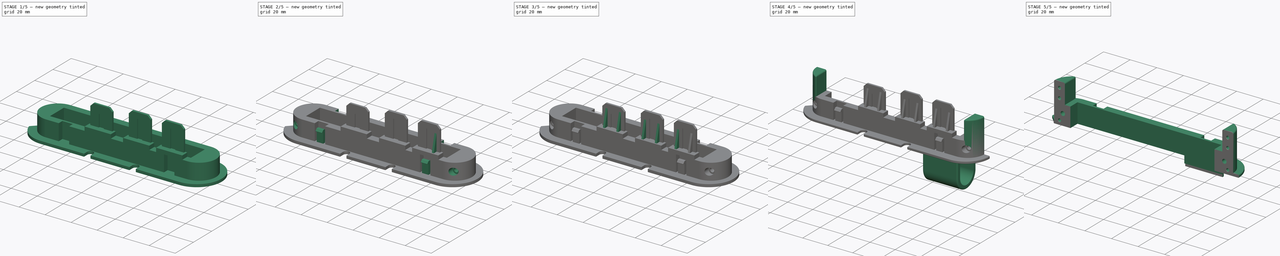
[diagram: build sequence overview — one tinted view per stage of 5, left to right]
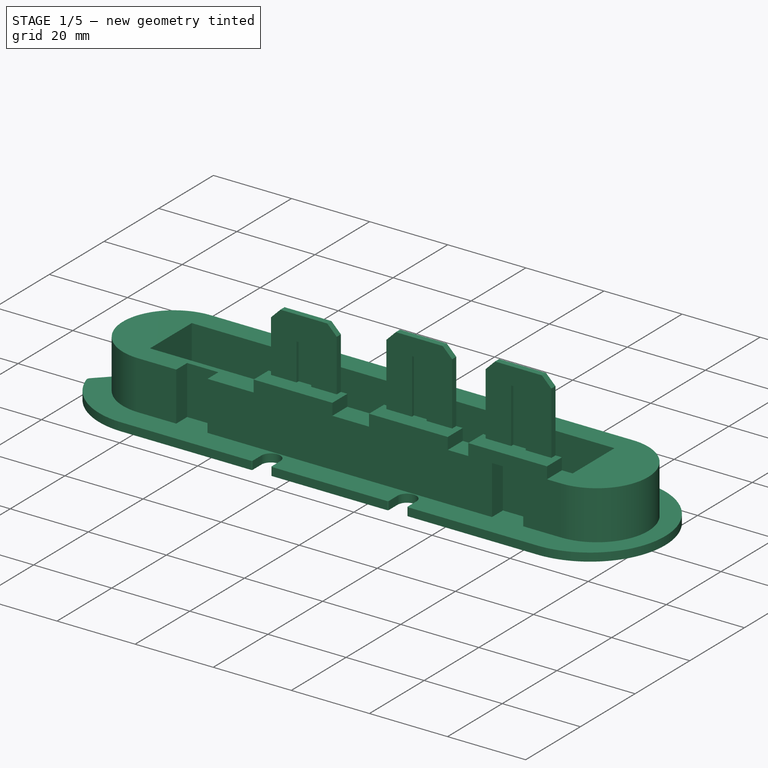
[diagram: stage 1 of 5 — iso view after this stage's code; geometry added in this stage tinted green]
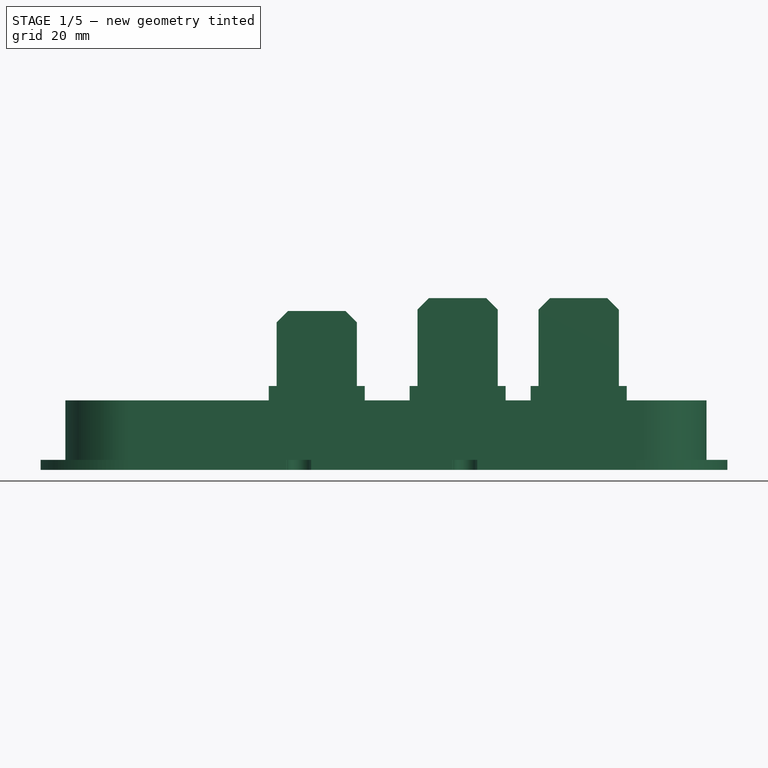
[diagram: stage 1 of 5 — front view after this stage's code; geometry added in this stage tinted green]
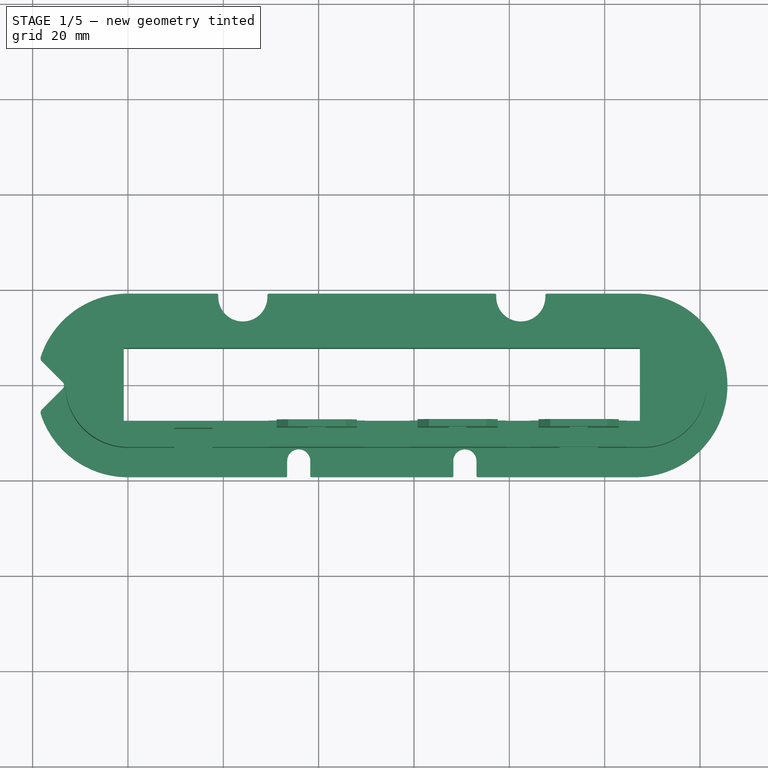
[diagram: stage 1 of 5 — top view after this stage's code; geometry added in this stage tinted green]
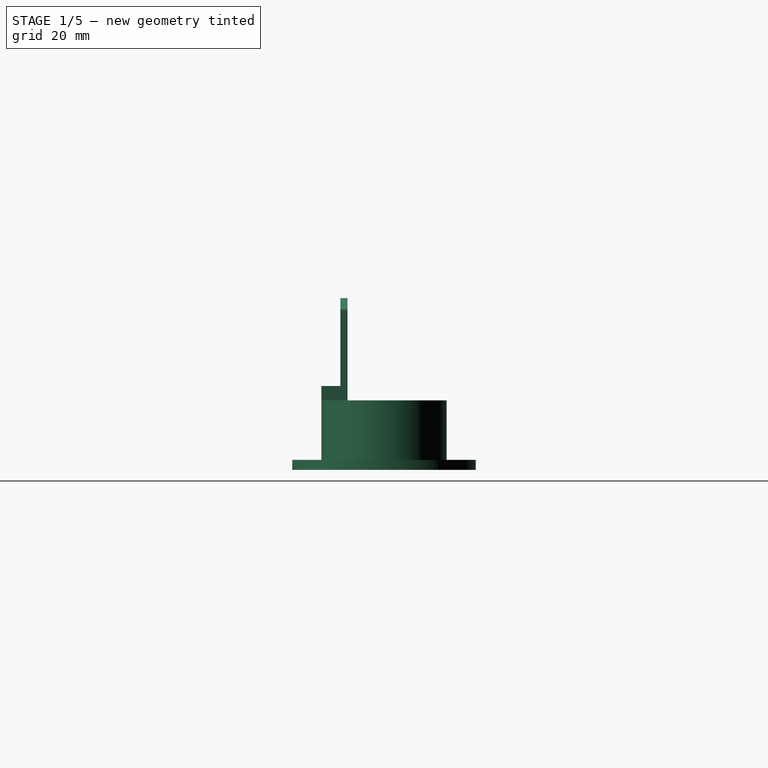
[diagram: stage 1 of 5 — right view after this stage's code; geometry added in this stage tinted green]
FCSTD DOCUMENT  (FreeCAD 1.0RUnknown)
Label: liftgate-wiring-harness-v2
License: All rights reserved
LicenseURL: https://en.wikipedia.org/wiki/All_rights_reserved
objects: Sketcher::SketchObject×20, PartDesign::Pad×11, PartDesign::Plane×11, PartDesign::Point×9, PartDesign::Pocket×8, PartDesign::Fillet×6, PartDesign::Mirrored×4, PartDesign::Body×3, Part::FeaturePython×3, PartDesign::FeatureBase×2, Part::Extrusion×1, App::DocumentObjectGroup×1, PartDesign::SubShapeBinder×1
note: 155 computed .brp shape members not serialized (recipe doc carries the construction recipe); baked Part::Feature solids carry a one-line shape summary decoded from their .brp

FEATURE [Sketcher::SketchObject] Sketch
  ArcFitTolerance = 1e-06
  AttachmentSupport = -> [XY_Plane]
  FullyConstrained = true
  MakeInternals = false
  MapMode = 5
  sketch-geometry (42):
    g0: ArcOfCircle CenterX=0 CenterY=0 CenterZ=0 NormalX=0 NormalY=0 NormalZ=1 AngleXU=0 Radius=19.25 StartAngle=1.5708 EndAngle=2.82173
    g1: ArcOfCircle CenterX=106.5 CenterY=2.3e-15 CenterZ=0 NormalX=0 NormalY=0 NormalZ=1 AngleXU=0 Radius=19.25 StartAngle=4.71239 EndAngle=7.85398
    g2: LineSegment StartX=-3.1e-15 StartY=19.25 StartZ=0 EndX=18.6 EndY=19.25 EndZ=0
    g3: LineSegment StartX=-3.5e-15 StartY=-19.25 StartZ=0 EndX=33.15 EndY=-19.25 EndZ=0
    g4: LineSegment StartX=-18.0314 StartY=5.03142 StartZ=0 EndX=-13.7071 EndY=0.707107 EndZ=0
    g5: LineSegment StartX=-13.7071 StartY=-0.707107 StartZ=0 EndX=-18.0314 EndY=-5.03142 EndZ=0
    g6: ArcOfCircle CenterX=0 CenterY=0 CenterZ=0 NormalX=0 NormalY=0 NormalZ=1 AngleXU=0 Radius=19.25 StartAngle=3.46146 EndAngle=4.71239
    g7: ArcOfCircle CenterX=-17.3243 CenterY=5.73853 CenterZ=0 NormalX=0 NormalY=0 NormalZ=1 AngleXU=0 Radius=1 StartAngle=2.82173 EndAngle=3.92699
    g8: ArcOfCircle CenterX=-17.3243 CenterY=-5.73853 CenterZ=0 NormalX=0 NormalY=0 NormalZ=1 AngleXU=0 Radius=1 StartAngle=2.35619 EndAngle=3.46146
    g9: ArcOfCircle CenterX=-14.4142 CenterY=0 CenterZ=0 NormalX=0 NormalY=0 NormalZ=1 AngleXU=0 Radius=1 StartAngle=5.49779 EndAngle=7.06858
    g10: GeomPoint [constr] X=-13 Y=0 Z=0
    g11: LineSegment [constr] StartX=53.25 StartY=19.25 StartZ=0 EndX=53.25 EndY=-19.25 EndZ=0
    g12: LineSegment StartX=33.4 StartY=-19 StartZ=0 EndX=33.4 EndY=-15.825 EndZ=0
    g13: LineSegment StartX=38.25 StartY=-15.825 StartZ=0 EndX=38.25 EndY=-19 EndZ=0
    g14: LineSegment StartX=68.25 StartY=-19 StartZ=0 EndX=68.25 EndY=-15.825 EndZ=0
    g15: LineSegment StartX=73.1 StartY=-15.825 StartZ=0 EndX=73.1 EndY=-19 EndZ=0
    g16: ArcOfCircle CenterX=35.825 CenterY=-15.825 CenterZ=0 NormalX=0 NormalY=0 NormalZ=1 AngleXU=0 Radius=2.425 StartAngle=2e-16 EndAngle=3.14159
    g17: ArcOfCircle CenterX=70.675 CenterY=-15.825 CenterZ=0 NormalX=0 NormalY=0 NormalZ=1 AngleXU=0 Radius=2.425 StartAngle=0 EndAngle=3.14159
    g18: LineSegment StartX=73.35 StartY=-19.25 StartZ=0 EndX=106.5 EndY=-19.25 EndZ=0
    g19: ArcOfCircle CenterX=33.15 CenterY=-19 CenterZ=0 NormalX=0 NormalY=0 NormalZ=1 AngleXU=0 Radius=0.25 StartAngle=4.71239 EndAngle=6.28319
    g20: GeomPoint [constr] X=33.4 Y=-19.25 Z=0
    g21: ArcOfCircle CenterX=38.5 CenterY=-19 CenterZ=0 NormalX=0 NormalY=0 NormalZ=1 AngleXU=0 Radius=0.25 StartAngle=3.14159 EndAngle=4.71239
    g22: ArcOfCircle CenterX=73.35 CenterY=-19 CenterZ=0 NormalX=0 NormalY=0 NormalZ=1 AngleXU=0 Radius=0.25 StartAngle=3.14159 EndAngle=4.71239
    g23: LineSegment StartX=38.5 StartY=-19.25 StartZ=0 EndX=68 EndY=-19.25 EndZ=0
    g24: ArcOfCircle CenterX=68 CenterY=-19 CenterZ=0 NormalX=0 NormalY=0 NormalZ=1 AngleXU=0 Radius=0.25 StartAngle=4.71239 EndAngle=6.28319
    g25: GeomPoint [constr] X=68.25 Y=-19.25 Z=0
    g26: LineSegment StartX=29.6 StartY=19.25 StartZ=0 EndX=76.9 EndY=19.25 EndZ=0
    g27: LineSegment StartX=87.9 StartY=19.25 StartZ=0 EndX=106.5 EndY=19.25 EndZ=0
    g28: LineSegment StartX=18.95 StartY=18.9 StartZ=0 EndX=18.95 EndY=18.55 EndZ=0
    g29: LineSegment StartX=29.25 StartY=18.55 StartZ=0 EndX=29.25 EndY=18.9 EndZ=0
    g30: LineSegment StartX=77.25 StartY=18.9 StartZ=0 EndX=77.25 EndY=18.55 EndZ=0
    g31: LineSegment StartX=87.55 StartY=18.55 StartZ=0 EndX=87.55 EndY=18.9 EndZ=0
    g32: ArcOfCircle CenterX=24.1 CenterY=18.55 CenterZ=0 NormalX=0 NormalY=0 NormalZ=1 AngleXU=0 Radius=5.15 StartAngle=3.14159 EndAngle=6.28319
    g33: ArcOfCircle CenterX=82.4 CenterY=18.55 CenterZ=0 NormalX=0 NormalY=0 NormalZ=1 AngleXU=0 Radius=5.15 StartAngle=3.14159 EndAngle=6.28319
    g34: ArcOfCircle CenterX=18.6 CenterY=18.9 CenterZ=0 NormalX=0 NormalY=0 NormalZ=1 AngleXU=0 Radius=0.35 StartAngle=-2.7e-15 EndAngle=1.5708
    g35: GeomPoint [constr] X=18.95 Y=19.25 Z=0
    g36: ArcOfCircle CenterX=29.6 CenterY=18.9 CenterZ=0 NormalX=0 NormalY=0 NormalZ=1 AngleXU=0 Radius=0.35 StartAngle=1.5708 EndAngle=3.14159
    g37: GeomPoint [constr] X=29.25 Y=19.25 Z=0
    g38: ArcOfCircle CenterX=76.9 CenterY=18.9 CenterZ=0 NormalX=0 NormalY=0 NormalZ=1 AngleXU=0 Radius=0.35 StartAngle=3.6e-15 EndAngle=1.5708
    g39: GeomPoint [constr] X=77.25 Y=19.25 Z=0
    g40: ArcOfCircle CenterX=87.9 CenterY=18.9 CenterZ=0 NormalX=0 NormalY=0 NormalZ=1 AngleXU=0 Radius=0.35 StartAngle=1.5708 EndAngle=3.14159
    g41: GeomPoint [constr] X=87.55 Y=19.25 Z=0
  constraints (109):
    c: Tangent(g0,g2) = 1.5708
    c: Coincident(g6,g3) = -1.5708
    c: Coincident(g1,g27) = 1.5708
    c: Coincident(g1,g18) = -1.5708
    c: Equal(g0,g1)
    c: Horizontal(g3)
    c: Radius(g0) = 19.25
    c: Coincident(g0,g-1)
    c: DistanceX(g0,g1) = 106.5
    c: PointOnObject(g10,g-1)
    c: Equal(g0,g6)
    c: Coincident(g0,g6)
    c: Tangent(g4,g7) = -1.5708
    c: Tangent(g0,g7) = -1.5708
    c: Tangent(g5,g8) = -1.5708
    c: Tangent(g6,g8) = -1.5708
    c: Equal(g8,g7)
    c: Radius(g7) = 1
    c: PointOnObject(g10,g4)
    c: PointOnObject(g10,g5)
    c: Tangent(g4,g9) = 1.5708
    c: Tangent(g5,g9) = 1.5708
    c: Equal(g9,g7)
    c: PointOnObject(g9,g-1)
    c: Angle(g-1,g4) = 2.35619
    c: DistanceX(g10,g0) = 13
    c: PointOnObject(g3,g-2)
    c: Symmetric(g2,g27,g11)
    c: Symmetric(g3,g18,g11)
    c: Vertical(g12)
    c: Vertical(g13)
    c: Vertical(g15)
    c: Coincident(g17,g14)
    c: Coincident(g15,g17)
    c: Coincident(g13,g16)
    c: Tangent(g16,g12) = 1.5708
    c: Vertical(g11)
    c: Equal(g16,g17)
    c: Horizontal(g14,g17)
    c: Vertical(g14)
    c: Distance(g20,g12) = 3.425
    c: PointOnObject(g20,g3)
    c: PointOnObject(g20,g12)
    c: Tangent(g3,g19) = -1.5708
    c: Tangent(g12,g19) = -1.5708
    c: Tangent(g13,g21) = -1.5708
    c: Tangent(g15,g22) = -1.5708
    c: Tangent(g18,g22) = -1.5708
    c: Equal(g21,g19)
    c: Horizontal(g16,g13)
    c: Horizontal(g13,g14)
    c: Horizontal(g17,g15)
    c: Distance(g25,g13) = 30
    c: Horizontal(g18)
    c: Coincident(g23,g21)
    c: Horizontal(g23)
    c: PointOnObject(g25,g23)
    c: PointOnObject(g25,g14)
    c: Tangent(g23,g24) = -1.5708
    c: Tangent(g14,g24) = -1.5708
    c: Equal(g22,g24)
    c: Distance(g13,g12) = 4.85
    c: Horizontal(g22,g24)
    c: Horizontal(g19,g21)
    c: Horizontal(g21,g24)
    c: Radius(g19) = 0.25
    c: Symmetric(g21,g23,g11)
    c: Horizontal(g2)
    c: Horizontal(g26)
    c: Horizontal(g27)
    c: DistanceX(g37,g39) = 48
    c: Vertical(g31)
    c: Vertical(g29)
    c: Vertical(g28)
    c: Vertical(g30)
    c: Coincident(g32,g28)
    c: Coincident(g30,g33)
    c: Coincident(g29,g32)
    c: Coincident(g33,g31)
    c: Horizontal(g41,g39)
    c: Equal(g33,g32)
    c: Symmetric(g37,g39,g11)
    c: Horizontal(g32,g29)
    c: Horizontal(g33,g31)
    c: Radius(g32) = 5.15
    c: Distance(g35,g28) = 0.7
    c: PointOnObject(g35,g2)
    c: PointOnObject(g35,g28)
    c: Tangent(g2,g34) = 1.5708
    c: Tangent(g28,g34) = 1.5708
    c: PointOnObject(g37,g29)
    c: PointOnObject(g37,g26)
    c: Tangent(g29,g36) = 1.5708
    c: Tangent(g26,g36) = 1.5708
    c: PointOnObject(g39,g30)
    c: PointOnObject(g39,g26)
    c: Tangent(g30,g38) = 1.5708
    c: Tangent(g26,g38) = 1.5708
    c: PointOnObject(g41,g31)
    c: PointOnObject(g41,g27)
    c: Tangent(g31,g40) = 1.5708
    c: Tangent(g27,g40) = 1.5708
    c: Equal(g40,g38)
    c: Equal(g38,g36)
    c: Equal(g36,g34)
    c: Radius(g34) = 0.35
    c: Horizontal(g32,g28)
    c: Horizontal(g30,g33)
    c: Equal(g30,g29)
FEATURE [PartDesign::Pad] Pad
  Direction = (0,0,1)
  Length = 2.1
  Length2 = 10
  Profile = -> Sketch
  ReferenceAxis = -> Sketch [N_Axis]
  Refine = true
  Suppressed = false
  Type = 0
FEATURE [Sketcher::SketchObject] Sketch001
  ArcFitTolerance = 1e-06
  AttachmentSupport = -> [Pad]
  ExternalGeometry = -> [Pad]
  FullyConstrained = true
  MakeInternals = false
  MapMode = 5
  Placement = pos=(0,0,2.1) rot=(0,0,1;0rad)
  sketch-geometry (12):
    g0: ArcOfCircle [constr] CenterX=0 CenterY=0 CenterZ=0 NormalX=0 NormalY=0 NormalZ=1 AngleXU=0 Radius=13.125 StartAngle=1.5708 EndAngle=4.71239
    g1: ArcOfCircle [constr] CenterX=106.5 CenterY=-7e-16 CenterZ=0 NormalX=0 NormalY=0 NormalZ=1 AngleXU=0 Radius=13.125 StartAngle=4.71239 EndAngle=7.85398
    g2: LineSegment [constr] StartX=-2.1e-15 StartY=13.125 StartZ=0 EndX=106.5 EndY=13.125 EndZ=0
    g3: LineSegment [constr] StartX=0 StartY=-13.125 StartZ=0 EndX=106.5 EndY=-13.125 EndZ=0
    g4: LineSegment StartX=-0.875 StartY=7.65 StartZ=0 EndX=107.375 EndY=7.65 EndZ=0
    g5: LineSegment StartX=107.375 StartY=7.65 StartZ=0 EndX=107.375 EndY=-7.65 EndZ=0
    g6: LineSegment StartX=107.375 StartY=-7.65 StartZ=0 EndX=-0.875 EndY=-7.65 EndZ=0
    g7: LineSegment StartX=-0.875 StartY=-7.65 StartZ=0 EndX=-0.875 EndY=7.65 EndZ=0
    g8: LineSegment [constr] StartX=-0.875 StartY=7.65 StartZ=0 EndX=107.375 EndY=-7.65 EndZ=0
    g9: GeomPoint [constr] X=53.25 Y=-5e-16 Z=0
    g10: GeomPoint [constr] X=53.25 Y=19.25 Z=0
    g11: GeomPoint [constr] X=53.25 Y=13.125 Z=0
  constraints (25):
    c: Tangent(g0,g2) = 1.5708
    c: Tangent(g0,g3) = -1.5708
    c: Tangent(g1,g2) = 1.5708
    c: Tangent(g1,g3) = -1.5708
    c: Equal(g0,g1)
    c: Horizontal(g3)
    c: Radius(g0) = 13.125
    c: Coincident(g0,g-1)
    c: Horizontal(g4)
    c: Coincident(g4,g5)
    c: Coincident(g5,g6)
    c: Horizontal(g6)
    c: Coincident(g7,g4)
    c: Vertical(g7)
    c: DistanceY(g5,g5) = 15.3
    c: Symmetric(g4,g5,g-1)
    c: Coincident(g6,g7)
    c: DistanceX(g4,g4) = 108.25
    c: Coincident(g8,g4)
    c: Coincident(g8,g5)
    c: Symmetric(g8,g8,g9)
    c: Symmetric(g-3,g-3,g10)
    c: Vertical(g9,g10)
    c: Symmetric(g2,g2,g11)
    c: Vertical(g11,g10)
FEATURE [PartDesign::Pocket] Pocket
  BaseFeature = -> Pad
  Direction = (0,0,-1)
  Length = 5
  Length2 = 5
  Profile = -> Sketch001
  ReferenceAxis = -> Sketch001 [N_Axis]
  Refine = true
  Suppressed = false
  Type = 0
FEATURE [Sketcher::SketchObject] Sketch002
  ArcFitTolerance = 1e-06
  AttachmentSupport = -> [Pocket]
  ExternalGeometry = -> [Pocket]
  FullyConstrained = true
  MakeInternals = false
  MapMode = 5
  Placement = pos=(0,0,2.1) rot=(0,0,1;0rad)
  sketch-geometry (8):
    g0: ArcOfCircle CenterX=0 CenterY=0 CenterZ=0 NormalX=0 NormalY=0 NormalZ=1 AngleXU=0 Radius=13.125 StartAngle=1.5708 EndAngle=4.71239
    g1: ArcOfCircle CenterX=108.25 CenterY=5e-16 CenterZ=0 NormalX=0 NormalY=0 NormalZ=1 AngleXU=0 Radius=13.125 StartAngle=4.71239 EndAngle=7.85398
    g2: LineSegment StartX=8e-16 StartY=13.125 StartZ=0 EndX=108.25 EndY=13.125 EndZ=0
    g3: LineSegment StartX=-2.4e-15 StartY=-13.125 StartZ=0 EndX=108.25 EndY=-13.125 EndZ=0
    g4: LineSegment StartX=-0.875 StartY=-7.65 StartZ=0 EndX=107.375 EndY=-7.65 EndZ=0
    g5: LineSegment StartX=107.375 StartY=-7.65 StartZ=0 EndX=107.375 EndY=7.65 EndZ=0
    g6: LineSegment StartX=107.375 StartY=7.65 StartZ=0 EndX=-0.875 EndY=7.65 EndZ=0
    g7: LineSegment StartX=-0.875 StartY=7.65 StartZ=0 EndX=-0.875 EndY=-7.65 EndZ=0
  constraints (17):
    c: Tangent(g0,g2) = 1.5708
    c: Tangent(g0,g3) = -1.5708
    c: Tangent(g1,g2) = 1.5708
    c: Tangent(g1,g3) = -1.5708
    c: Equal(g0,g1)
    c: Horizontal(g3)
    c: Radius(g0) = 13.125
    c: DistanceX(g0,g1) = 108.25
    c: Coincident(g0,g-1)
    c: Coincident(g4,g-6)
    c: Coincident(g4,g5)
    c: Coincident(g5,g-6)
    c: Coincident(g5,g6)
    c: Coincident(g7,g6)
    c: Coincident(g7,g4)
    c: Coincident(g6,g-4)
    c: Coincident(g4,g-5)
FEATURE [PartDesign::Pad] Pad001
  BaseFeature = -> Pocket
  Direction = (0,0,1)
  Length = 12.5
  Length2 = 10
  Profile = -> Sketch002
  ReferenceAxis = -> Sketch002 [N_Axis]
  Refine = true
  Suppressed = false
  Type = 0
FEATURE [Sketcher::SketchObject] Sketch004
  ArcFitTolerance = 1e-06
  AttachmentSupport = -> [Pad001]
  ExternalGeometry = -> [Pad001]
  FullyConstrained = true
  MakeInternals = false
  MapMode = 5
  Placement = pos=(0,0,14.6) rot=(0,0,1;0rad)
  sketch-geometry (12):
    g0: LineSegment StartX=79.225 StartY=-7.65 StartZ=0 EndX=59.075 EndY=-7.65 EndZ=0
    g1: LineSegment StartX=59.075 StartY=-7.65 StartZ=0 EndX=59.075 EndY=-13.125 EndZ=0
    g2: LineSegment StartX=59.075 StartY=-13.125 StartZ=0 EndX=79.225 EndY=-13.125 EndZ=0
    g3: LineSegment StartX=79.225 StartY=-13.125 StartZ=0 EndX=79.225 EndY=-7.65 EndZ=0
    g4: LineSegment StartX=49.675 StartY=-7.65 StartZ=0 EndX=29.525 EndY=-7.65 EndZ=0
    g5: LineSegment StartX=29.525 StartY=-7.65 StartZ=0 EndX=29.525 EndY=-13.125 EndZ=0
    g6: LineSegment StartX=29.525 StartY=-13.125 StartZ=0 EndX=49.675 EndY=-13.125 EndZ=0
    g7: LineSegment StartX=49.675 StartY=-13.125 StartZ=0 EndX=49.675 EndY=-7.65 EndZ=0
    g8: LineSegment StartX=104.625 StartY=-7.65 StartZ=0 EndX=84.475 EndY=-7.65 EndZ=0
    g9: LineSegment StartX=84.475 StartY=-7.65 StartZ=0 EndX=84.475 EndY=-13.125 EndZ=0
    g10: LineSegment StartX=84.475 StartY=-13.125 StartZ=0 EndX=104.625 EndY=-13.125 EndZ=0
    g11: LineSegment StartX=104.625 StartY=-13.125 StartZ=0 EndX=104.625 EndY=-7.65 EndZ=0
  constraints (36):
    c: Coincident(g0,g1)
    c: Horizontal(g2)
    c: Coincident(g2,g3)
    c: Coincident(g3,g0)
    c: Vertical(g1)
    c: Vertical(g3)
    c: Coincident(g4,g5)
    c: Horizontal(g6)
    c: Coincident(g6,g7)
    c: Coincident(g7,g4)
    c: Vertical(g5)
    c: Vertical(g7)
    c: Coincident(g8,g9)
    c: Horizontal(g10)
    c: Coincident(g10,g11)
    c: Coincident(g11,g8)
    c: Vertical(g9)
    c: Vertical(g11)
    c: Coincident(g10,g9)
    c: Coincident(g2,g1)
    c: Coincident(g6,g5)
    c: DistanceX(g8,g8) = 20.15
    c: Equal(g4,g0)
    c: Equal(g0,g8)
    c: Distance(g0,g8) = 5.25
    c: Distance(g4,g0) = 9.4
    c: PointOnObject(g4,g-4)
    c: PointOnObject(g0,g-4)
    c: PointOnObject(g8,g-4)
    c: PointOnObject(g5,g-3)
    c: PointOnObject(g1,g-3)
    c: PointOnObject(g9,g-3)
    c: Distance(g-4,g8) = 2.75
    c: PointOnObject(g8,g-4)
    c: PointOnObject(g0,g-4)
    c: PointOnObject(g4,g-4)
FEATURE [PartDesign::Pad] Pad002  label="Clip Foundation"
  BaseFeature = -> Pad001
  Direction = (0,0,1)
  Length = 3
  Length2 = 10
  Profile = -> Sketch004
  ReferenceAxis = -> Sketch004 [N_Axis]
  Refine = true
  Suppressed = false
  Type = 0
FEATURE [PartDesign::Plane] DatumPlane
  AttachmentSupport = -> [Pad002]
  Length = 60
  MapMode = 5
  Placement = pos=(0,-7.65,0) rot=(0,0.707107,0.707107;3.14159rad)
  ResizeMode = 0
  Width = 60
FEATURE [Sketcher::SketchObject] Sketch005  label="Clip outlines"
  ArcFitTolerance = 1e-06
  AttachmentSupport = -> [DatumPlane]
  ExternalGeometry = -> [Pad002]
  FullyConstrained = true
  MakeInternals = false
  MapMode = 5
  Placement = pos=(0,-7.65,0) rot=(0,0.707107,0.707107;3.14159rad)
  sketch-geometry (21):
    g0: LineSegment StartX=-31.175 StartY=17.6 StartZ=0 EndX=-31.175 EndY=30.925 EndZ=0
    g1: LineSegment StartX=-31.175 StartY=30.925 StartZ=0 EndX=-33.6 EndY=33.35 EndZ=0
    g2: LineSegment StartX=-33.6 StartY=33.35 StartZ=0 EndX=-45.6 EndY=33.35 EndZ=0
    g3: LineSegment StartX=-45.6 StartY=33.35 StartZ=0 EndX=-48.025 EndY=30.925 EndZ=0
    g4: LineSegment StartX=-48.025 StartY=30.925 StartZ=0 EndX=-48.025 EndY=17.6 EndZ=0
    g5: LineSegment StartX=-48.025 StartY=17.6 StartZ=0 EndX=-31.175 EndY=17.6 EndZ=0
    g6: LineSegment StartX=-60.725 StartY=17.6 StartZ=0 EndX=-60.725 EndY=33.625 EndZ=0
    g7: LineSegment StartX=-60.725 StartY=33.625 StartZ=0 EndX=-63.15 EndY=36.05 EndZ=0
    g8: LineSegment StartX=-63.15 StartY=36.05 StartZ=0 EndX=-75.15 EndY=36.05 EndZ=0
    g9: LineSegment StartX=-75.15 StartY=36.05 StartZ=0 EndX=-77.575 EndY=33.625 EndZ=0
    g10: LineSegment StartX=-77.575 StartY=33.625 StartZ=0 EndX=-77.575 EndY=17.6 EndZ=0
    g11: LineSegment StartX=-77.575 StartY=17.6 StartZ=0 EndX=-60.725 EndY=17.6 EndZ=0
    g12: LineSegment StartX=-86.125 StartY=17.6 StartZ=0 EndX=-86.125 EndY=33.625 EndZ=0
    g13: LineSegment StartX=-86.125 StartY=33.625 StartZ=0 EndX=-88.55 EndY=36.05 EndZ=0
    g14: LineSegment StartX=-88.55 StartY=36.05 StartZ=0 EndX=-100.55 EndY=36.05 EndZ=0
    g15: LineSegment StartX=-100.55 StartY=36.05 StartZ=0 EndX=-102.975 EndY=33.625 EndZ=0
    g16: LineSegment StartX=-102.975 StartY=33.625 StartZ=0 EndX=-102.975 EndY=17.6 EndZ=0
    g17: LineSegment StartX=-102.975 StartY=17.6 StartZ=0 EndX=-86.125 EndY=17.6 EndZ=0
    g18: GeomPoint [constr] X=-39.6 Y=17.6 Z=0
    g19: GeomPoint [constr] X=-69.15 Y=17.6 Z=0
    g20: GeomPoint [constr] X=-94.55 Y=17.6 Z=0
  constraints (56):
    c: PointOnObject(g0,g-3)
    c: Vertical(g0)
    c: Coincident(g0,g1)
    c: Coincident(g1,g2)
    c: Horizontal(g2)
    c: Coincident(g2,g3)
    c: Coincident(g3,g4)
    c: Vertical(g4)
    c: Coincident(g4,g5)
    c: Coincident(g5,g0)
    c: PointOnObject(g6,g-4)
    c: Vertical(g6)
    c: Coincident(g6,g7)
    c: Coincident(g7,g8)
    c: Horizontal(g8)
    c: Coincident(g8,g9)
    c: Coincident(g9,g10)
    c: PointOnObject(g10,g-4)
    c: Coincident(g10,g11)
    c: PointOnObject(g11,g6)
    c: PointOnObject(g12,g-5)
    c: Vertical(g12)
    c: Coincident(g12,g13)
    c: Coincident(g13,g14)
    c: Horizontal(g14)
    c: Coincident(g14,g15)
    c: Coincident(g15,g16)
    c: PointOnObject(g16,g-5)
    c: Vertical(g16)
    c: Coincident(g16,g17)
    c: PointOnObject(g17,g12)
    c: Vertical(g10)
    c: Equal(g6,g10)
    c: Equal(g10,g12)
    c: Equal(g12,g16)
    c: Equal(g15,g13)
    c: Equal(g7,g9)
    c: Equal(g9,g13)
    c: Equal(g3,g1)
    c: Equal(g1,g7)
    c: Equal(g5,g11)
    c: Equal(g11,g17)
    c: DistanceX(g5,g5) = 16.85
    c: Distance(g17,g14) = 18.45
    c: Distance(g5,g2) = 15.75
    c: Equal(g4,g0)
    c: Equal(g8,g14)
    c: Symmetric(g5,g5,g18)
    c: Symmetric(g11,g11,g19)
    c: Symmetric(g17,g17,g20)
    c: Symmetric(g-3,g-3,g18)
    c: Symmetric(g-4,g-4,g19)
    c: Symmetric(g-5,g-5,g20)
    c: Angle(g4,g3) = 2.35619
    c: Angle(g10,g9) = 2.35619
    c: DistanceX(g14,g14) = 12
FEATURE [PartDesign::Pad] Pad003
  AlongSketchNormal = false
  BaseFeature = -> Pad002
  Direction = (0,1,-2e-16)
  Length = 1.5
  Length2 = 10
  Profile = -> Sketch005
  ReferenceAxis = -> Sketch005 [N_Axis]
  Refine = true
  Reversed = true
  Suppressed = false
  Type = 0
FEATURE [PartDesign::Plane] DatumPlane001
  AttachmentSupport = -> [Pad003]
  Length = 60
  MapMode = 5
  Placement = pos=(0,-9.15,2.1e-15) rot=(1,0,0;1.5708rad)
  ResizeMode = 0
  Width = 60
FEATURE [Sketcher::SketchObject] Sketch006
  ArcFitTolerance = 1e-06
  AttachmentSupport = -> [DatumPlane001]
  ExternalGeometry = -> [Pad003]
  FullyConstrained = true
  MakeInternals = false
  MapMode = 5
  Placement = pos=(0,-9.15,2.1e-15) rot=(1,0,0;1.5708rad)
  sketch-geometry (18):
    g0: LineSegment StartX=37.725 StartY=17.6 StartZ=0 EndX=41.475 EndY=17.6 EndZ=0
    g1: LineSegment StartX=41.475 StartY=17.6 StartZ=0 EndX=41.475 EndY=27.1 EndZ=0
    g2: LineSegment StartX=41.475 StartY=27.1 StartZ=0 EndX=37.725 EndY=27.1 EndZ=0
    g3: LineSegment StartX=37.725 StartY=27.1 StartZ=0 EndX=37.725 EndY=17.6 EndZ=0
    g4: LineSegment StartX=71.025 StartY=17.6 StartZ=0 EndX=67.275 EndY=17.6 EndZ=0
    g5: LineSegment StartX=67.275 StartY=17.6 StartZ=0 EndX=67.275 EndY=31.6 EndZ=0
    g6: LineSegment StartX=67.275 StartY=31.6 StartZ=0 EndX=71.025 EndY=31.6 EndZ=0
    g7: LineSegment StartX=71.025 StartY=31.6 StartZ=0 EndX=71.025 EndY=17.6 EndZ=0
    g8: LineSegment StartX=92.675 StartY=17.6 StartZ=0 EndX=96.425 EndY=17.6 EndZ=0
    g9: LineSegment StartX=96.425 StartY=17.6 StartZ=0 EndX=96.425 EndY=31.6 EndZ=0
    g10: LineSegment StartX=96.425 StartY=31.6 StartZ=0 EndX=92.675 EndY=31.6 EndZ=0
    g11: LineSegment StartX=92.675 StartY=31.6 StartZ=0 EndX=92.675 EndY=17.6 EndZ=0
    g12: GeomPoint [constr] X=39.6 Y=17.6 Z=0
    g13: GeomPoint [constr] X=69.15 Y=17.6 Z=0
    g14: GeomPoint [constr] X=94.55 Y=17.6 Z=0
    g15: GeomPoint [constr] X=39.6 Y=17.6 Z=0
    g16: GeomPoint [constr] X=69.15 Y=17.6 Z=0
    g17: GeomPoint [constr] X=94.55 Y=17.6 Z=0
  constraints (39):
    c: Coincident(g0,g1)
    c: Coincident(g1,g2)
    c: Coincident(g2,g3)
    c: Coincident(g3,g0)
    c: Horizontal(g0)
    c: Horizontal(g2)
    c: Vertical(g1)
    c: Vertical(g3)
    c: Coincident(g4,g5)
    c: Coincident(g5,g6)
    c: Coincident(g6,g7)
    c: Coincident(g7,g4)
    c: Horizontal(g4)
    c: Horizontal(g6)
    c: Vertical(g5)
    c: Vertical(g7)
    c: Coincident(g8,g9)
    c: Coincident(g9,g10)
    c: Coincident(g10,g11)
    c: Coincident(g11,g8)
    c: Horizontal(g8)
    c: Horizontal(g10)
    c: Vertical(g9)
    c: Vertical(g11)
    c: Symmetric(g0,g0,g12)
    c: Symmetric(g4,g4,g13)
    c: Symmetric(g8,g8,g14)
    c: Symmetric(g-3,g-3,g15)
    c: Symmetric(g-4,g-4,g16)
    c: Symmetric(g-5,g-5,g17)
    c: Coincident(g17,g14)
    c: Coincident(g16,g13)
    c: Coincident(g12,g15)
    c: Equal(g2,g6)
    c: Equal(g6,g10)
    c: Distance(g2,g2) = 3.75
    c: Equal(g5,g11)
    c: Distance(g-7,g2) = 6.25
    c: Distance(g-6,g6) = 4.45
FEATURE [PartDesign::Pocket] Pocket002
  BaseFeature = -> Pad003
  Direction = (0,1,-2e-16)
  Length = 0.75
  Length2 = 5
  Profile = -> Sketch006
  ReferenceAxis = -> Sketch006 [N_Axis]
  Refine = true
  Suppressed = false
  Type = 0
FEATURE [Sketcher::SketchObject] Sketch007  label="clip recess 1"
  ArcFitTolerance = 1e-06
  AttachmentSupport = -> [Pocket002]
  ExternalGeometry = -> [Pocket002]
  FullyConstrained = true
  MakeInternals = false
  MapMode = 5
  Placement = pos=(0,-13.125,0) rot=(1,0,0;1.5708rad)
  sketch-geometry (11):
    g0: LineSegment StartX=9.7 StartY=2.1 StartZ=0 EndX=17.7 EndY=2.1 EndZ=0
    g1: LineSegment StartX=17.7 StartY=2.1 StartZ=0 EndX=17.7 EndY=14.6 EndZ=0
    g2: LineSegment StartX=17.7 StartY=14.6 StartZ=0 EndX=9.7 EndY=14.6 EndZ=0
    g3: LineSegment StartX=9.7 StartY=14.6 StartZ=0 EndX=9.7 EndY=2.1 EndZ=0
    g4: LineSegment StartX=98.55 StartY=14.6 StartZ=0 EndX=90.55 EndY=14.6 EndZ=0
    g5: LineSegment StartX=90.55 StartY=14.6 StartZ=0 EndX=90.55 EndY=2.1 EndZ=0
    g6: LineSegment StartX=90.55 StartY=2.1 StartZ=0 EndX=98.55 EndY=2.1 EndZ=0
    g7: LineSegment StartX=98.55 StartY=2.1 StartZ=0 EndX=98.55 EndY=14.6 EndZ=0
    g8: GeomPoint [constr] X=54.125 Y=2.1 Z=0
    g9: GeomPoint [constr] X=94.55 Y=2.1 Z=0
    g10: GeomPoint [constr] X=94.55 Y=17.6 Z=0
  constraints (26):
    c: Coincident(g0,g1)
    c: Coincident(g1,g2)
    c: Coincident(g2,g3)
    c: Coincident(g3,g0)
    c: Horizontal(g0)
    c: Horizontal(g2)
    c: Vertical(g1)
    c: Vertical(g3)
    c: Coincident(g4,g5)
    c: Coincident(g5,g6)
    c: Coincident(g6,g7)
    c: Coincident(g7,g4)
    c: Horizontal(g4)
    c: Horizontal(g6)
    c: Vertical(g5)
    c: Vertical(g7)
    c: PointOnObject(g4,g-4)
    c: PointOnObject(g1,g-3)
    c: Equal(g2,g4)
    c: Distance(g2,g2) = 8
    c: Symmetric(g0,g5,g8)
    c: Symmetric(g6,g6,g9)
    c: Symmetric(g-5,g-5,g10)
    c: Vertical(g9,g10)
    c: Symmetric(g-6,g-6,g8)
    c: PointOnObject(g9,g-6)
FEATURE [Sketcher::SketchObject] Sketch008  label="clip recess 2"
  ArcFitTolerance = 1e-06
  AttachmentSupport = -> [Pocket002]
  ExternalGeometry = -> [Sketch007]
  FullyConstrained = true
  MakeInternals = false
  MapMode = 5
  Placement = pos=(0,13.125,0) rot=(0,0.707107,0.707107;3.14159rad)
  sketch-geometry (8):
    g0: LineSegment StartX=-98.55 StartY=14.6 StartZ=0 EndX=-90.55 EndY=14.6 EndZ=0
    g1: LineSegment StartX=-90.55 StartY=2.1 StartZ=0 EndX=-90.55 EndY=14.6 EndZ=0
    g2: LineSegment StartX=-98.55 StartY=2.1 StartZ=0 EndX=-90.55 EndY=2.1 EndZ=0
    g3: LineSegment StartX=-98.55 StartY=14.6 StartZ=0 EndX=-98.55 EndY=2.1 EndZ=0
    g4: LineSegment StartX=-17.7 StartY=14.6 StartZ=0 EndX=-9.7 EndY=14.6 EndZ=0
    g5: LineSegment StartX=-17.7 StartY=2.1 StartZ=0 EndX=-17.7 EndY=14.6 EndZ=0
    g6: LineSegment StartX=-9.7 StartY=14.6 StartZ=0 EndX=-9.7 EndY=2.1 EndZ=0
    g7: LineSegment StartX=-17.7 StartY=2.1 StartZ=0 EndX=-9.7 EndY=2.1 EndZ=0
  constraints (16):
    c: Coincident(g0,g-5)
    c: Coincident(g0,g-4)
    c: Coincident(g1,g-6)
    c: Coincident(g1,g0)
    c: Coincident(g2,g-6)
    c: Coincident(g2,g1)
    c: Coincident(g3,g0)
    c: Coincident(g3,g2)
    c: Coincident(g4,g-9)
    c: Coincident(g4,g-10)
    c: Coincident(g5,g-8)
    c: Coincident(g5,g4)
    c: Coincident(g6,g4)
    c: Coincident(g6,g-10)
    c: Coincident(g7,g5)
    c: Coincident(g7,g6)
FEATURE [PartDesign::Pocket] Pocket003  label="Clip recess 1"
  BaseFeature = -> Pocket002
  Direction = (0,1,-2e-16)
  Length = 4
  Length2 = 5
  Profile = -> Sketch007
  ReferenceAxis = -> Sketch007 [N_Axis]
  Refine = true
  Suppressed = false
  Type = 0
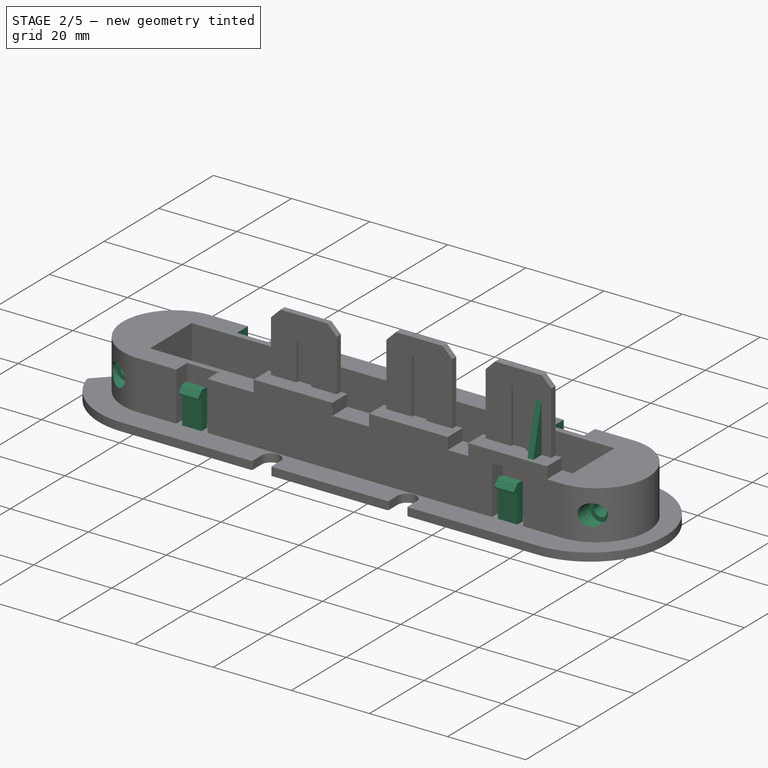
[diagram: stage 2 of 5 — iso view after this stage's code; geometry added in this stage tinted green]
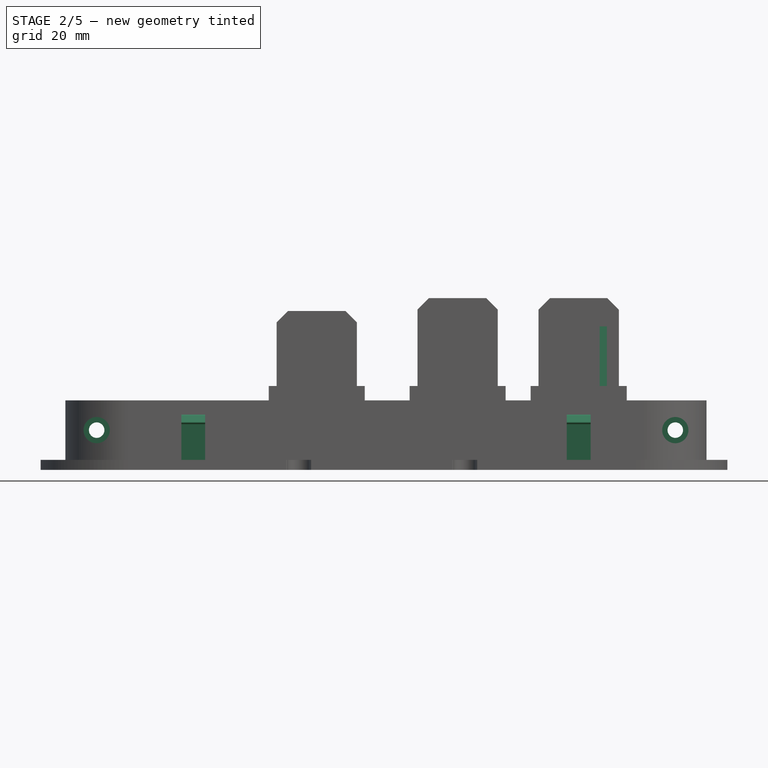
[diagram: stage 2 of 5 — front view after this stage's code; geometry added in this stage tinted green]
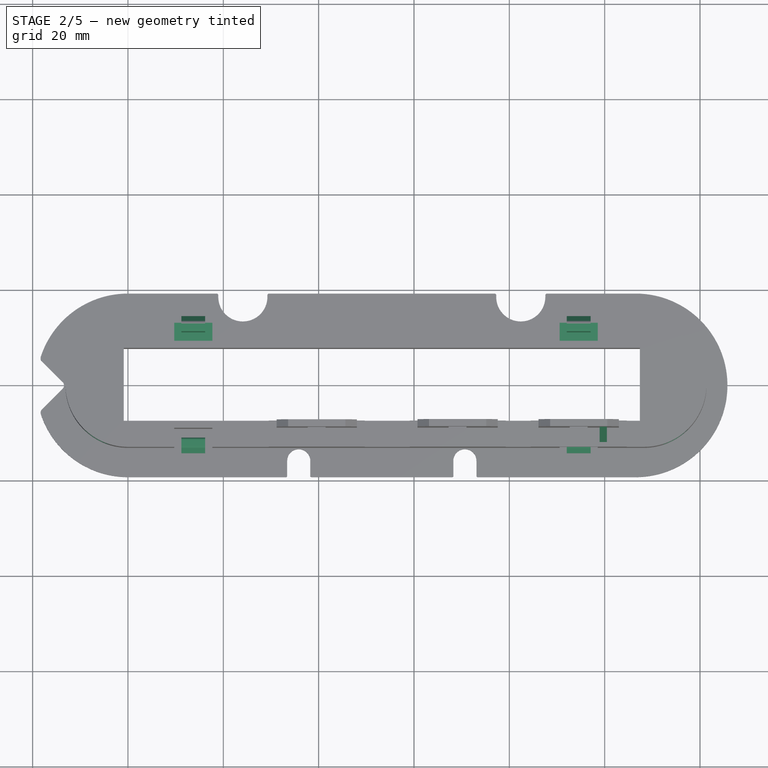
[diagram: stage 2 of 5 — top view after this stage's code; geometry added in this stage tinted green]
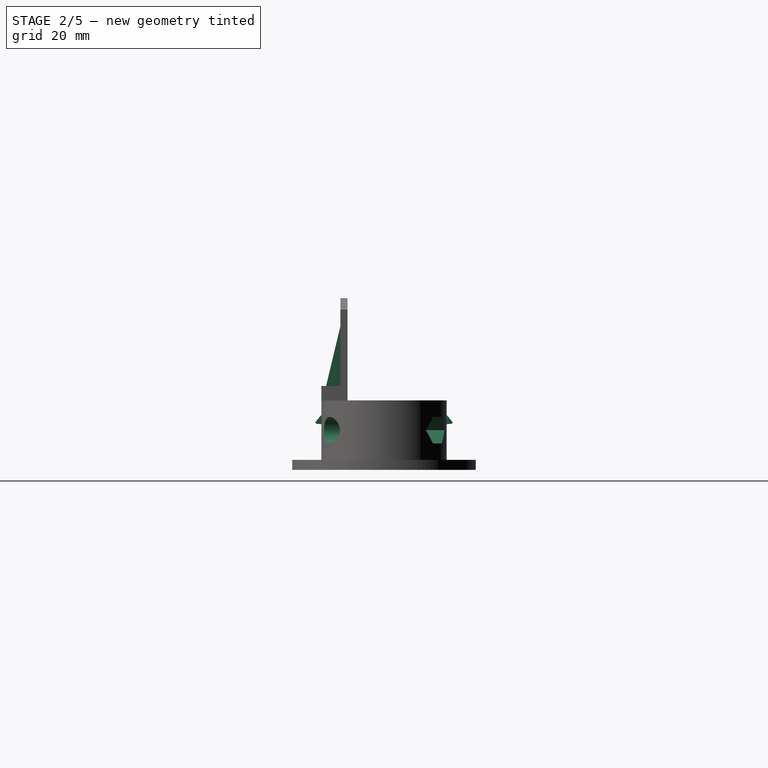
[diagram: stage 2 of 5 — right view after this stage's code; geometry added in this stage tinted green]
FEATURE [PartDesign::Pocket] Pocket004  label="Clip recess 2"
  BaseFeature = -> Pocket003
  Direction = (0,-1,2e-16)
  Length = 4
  Length2 = 5
  Profile = -> Sketch008
  ReferenceAxis = -> Sketch008 [N_Axis]
  Refine = true
  Suppressed = false
  Type = 0
FEATURE [PartDesign::Point] DatumPoint
  AttacherType = Attacher::AttachEnginePoint
  AttachmentSupport = -> [Pocket004]
  MapMode = 37
  Placement = pos=(94.55,-13.125,14.6) rot=(0,0,1;0rad)
FEATURE [PartDesign::Plane] DatumPlane002
  AttachmentSupport = -> [DatumPoint]
  Length = 60
  MapMode = 4
  Placement = pos=(94.55,-13.125,14.6) rot=(0.57735,0.57735,0.57735;2.0944rad)
  ResizeMode = 0
  Width = 60
FEATURE [PartDesign::Point] DatumPoint001
  AttacherType = Attacher::AttachEnginePoint
  AttachmentSupport = -> [Pocket004]
  MapMode = 37
  Placement = pos=(13.7,-10.125,2.1) rot=(0,0,1;0rad)
FEATURE [PartDesign::Plane] DatumPlane003
  AttachmentSupport = -> [DatumPoint001]
  Length = 60
  MapMode = 4
  Placement = pos=(13.7,-10.125,2.1) rot=(0.57735,0.57735,0.57735;2.0944rad)
  ResizeMode = 0
  Width = 60
FEATURE [Sketcher::SketchObject] Sketch009
  ArcFitTolerance = 1e-06
  AttachmentSupport = -> [DatumPlane002]
  ExternalGeometry = -> [Pocket004]
  FullyConstrained = true
  MakeInternals = false
  MapMode = 5
  Placement = pos=(94.55,-13.125,14.6) rot=(0.57735,0.57735,0.57735;2.0944rad)
  sketch-geometry (24):
    g0: LineSegment StartX=-3.6e-15 StartY=-12.5 StartZ=0 EndX=2 EndY=-12.5 EndZ=0
    g1: LineSegment StartX=2 StartY=-12.5 StartZ=0 EndX=2 EndY=-3.5 EndZ=0
    g2: LineSegment StartX=1.5 StartY=-3 StartZ=0 EndX=0.359719 EndY=-3 EndZ=0
    g3: LineSegment StartX=-3.6e-15 StartY=-5 StartZ=0 EndX=-3.6e-15 EndY=-12.5 EndZ=0
    g4: LineSegment StartX=26.25 StartY=-12.5 StartZ=0 EndX=26.25 EndY=-5 EndZ=0
    g5: LineSegment StartX=25.8903 StartY=-3 StartZ=0 EndX=24.75 EndY=-3 EndZ=0
    g6: LineSegment StartX=24.25 StartY=-3.5 StartZ=0 EndX=24.25 EndY=-12.5 EndZ=0
    g7: LineSegment StartX=24.25 StartY=-12.5 StartZ=0 EndX=26.25 EndY=-12.5 EndZ=0
    g8: LineSegment StartX=-1.03403 StartY=-4.90953 StartZ=0 EndX=-3.6e-15 EndY=-5 EndZ=0
    g9: LineSegment StartX=-1.20721 StartY=-4.50399 StartZ=0 EndX=-0.225171 EndY=-3.28053 EndZ=0
    g10: ArcOfCircle CenterX=-1.01225 CenterY=-4.66049 CenterZ=0 NormalX=0 NormalY=0 NormalZ=1 AngleXU=0 Radius=0.25 StartAngle=2.46523 EndAngle=4.62512
    g11: GeomPoint [constr] X=-1.5 Y=-4.86877 Z=0
    g12: LineSegment StartX=26.4752 StartY=-3.28053 StartZ=0 EndX=27.4572 EndY=-4.50399 EndZ=0
    g13: LineSegment StartX=26.25 StartY=-5 StartZ=0 EndX=27.284 EndY=-4.90953 EndZ=0
    g14: ArcOfCircle CenterX=27.2622 CenterY=-4.66049 CenterZ=0 NormalX=0 NormalY=0 NormalZ=1 AngleXU=0 Radius=0.25 StartAngle=4.79966 EndAngle=6.95955
    g15: GeomPoint [constr] X=27.75 Y=-4.86877 Z=0
    g16: ArcOfCircle CenterX=0.359719 CenterY=-3.75 CenterZ=0 NormalX=0 NormalY=0 NormalZ=1 AngleXU=0 Radius=0.75 StartAngle=1.5708 EndAngle=2.46523
    g17: GeomPoint [constr] X=-9e-16 Y=-3 Z=0
    g18: ArcOfCircle CenterX=25.8903 CenterY=-3.75 CenterZ=0 NormalX=0 NormalY=0 NormalZ=1 AngleXU=0 Radius=0.75 StartAngle=0.676366 EndAngle=1.5708
    g19: GeomPoint [constr] X=26.25 Y=-3 Z=0
    g20: ArcOfCircle CenterX=1.5 CenterY=-3.5 CenterZ=0 NormalX=0 NormalY=0 NormalZ=1 AngleXU=0 Radius=0.5 StartAngle=0 EndAngle=1.5708
    g21: GeomPoint [constr] X=2 Y=-3 Z=0
    g22: ArcOfCircle CenterX=24.75 CenterY=-3.5 CenterZ=0 NormalX=0 NormalY=0 NormalZ=1 AngleXU=0 Radius=0.5 StartAngle=1.5708 EndAngle=3.14159
    g23: GeomPoint [constr] X=24.25 Y=-3 Z=0
  constraints (58):
    c: Coincident(g0,g1)
    c: Coincident(g3,g0)
    c: Horizontal(g0)
    c: Horizontal(g2)
    c: Vertical(g1)
    c: Vertical(g3)
    c: Coincident(g0,g-5)
    c: Coincident(g6,g7)
    c: Coincident(g7,g4)
    c: Vertical(g4)
    c: Vertical(g6)
    c: Horizontal(g5)
    c: Horizontal(g7)
    c: Coincident(g4,g-6)
    c: Horizontal(g21,g23)
    c: Coincident(g3,g8)
    c: Distance(g0,g0) = 2
    c: Equal(g7,g0)
    c: PointOnObject(g17,g-3)
    c: Distance(g11,g-3) = 1.5
    c: Angle(g8,g3) = 1.65806
    c: PointOnObject(g11,g9)
    c: PointOnObject(g11,g8)
    c: Tangent(g9,g10) = 1.5708
    c: Tangent(g8,g10) = -1.5708
    c: Radius(g10) = 0.25
    c: DistanceY(g3,g3) = 7.5
    c: DistanceY(g17,g-1) = 3
    c: Coincident(g4,g13)
    c: PointOnObject(g15,g12)
    c: PointOnObject(g15,g13)
    c: Equal(g14,g10)
    c: PointOnObject(g19,g-4)
    c: Horizontal(g4,g3)
    c: Horizontal(g14,g10)
    c: Tangent(g14,g13) = -1.5708
    c: Tangent(g14,g12) = 1.5708
    c: Distance(g15,g-4) = 1.5
    c: PointOnObject(g17,g9)
    c: PointOnObject(g17,g2)
    c: Tangent(g9,g16) = 1.5708
    c: Tangent(g2,g16) = -1.5708
    c: PointOnObject(g19,g5)
    c: PointOnObject(g19,g12)
    c: Tangent(g5,g18) = -1.5708
    c: Tangent(g12,g18) = 1.5708
    c: Equal(g18,g16)
    c: Radius(g16) = 0.75
    c: PointOnObject(g21,g2)
    c: PointOnObject(g21,g1)
    c: Tangent(g2,g20) = -1.5708
    c: Tangent(g1,g20) = -1.5708
    c: PointOnObject(g23,g6)
    c: PointOnObject(g23,g5)
    c: Tangent(g6,g22) = -1.5708
    c: Tangent(g5,g22) = -1.5708
    c: Equal(g20,g22)
    c: Radius(g20) = 0.5
FEATURE [PartDesign::Pad] Pad004  label="Retaining Clips"
  BaseFeature = -> Pocket004
  Direction = (1,0,0)
  Length = 5
  Length2 = 10
  Midplane = true
  Profile = -> Sketch009
  ReferenceAxis = -> Sketch009 [N_Axis]
  Refine = true
  Suppressed = false
  Type = 0
FEATURE [PartDesign::Point] DatumPoint002
  AttacherType = Attacher::AttachEnginePoint
  AttachmentSupport = -> [Pad004]
  MapMode = 37
  Placement = pos=(54.125,-13.125,8.35) rot=(0,0,1;0rad)
FEATURE [PartDesign::Plane] DatumPlane004
  AttachmentSupport = -> [DatumPoint002,Pad004]
  Length = 60
  MapMode = 6
  Placement = pos=(54.125,-13.125,8.35) rot=(0,1,0;1.5708rad)
  ResizeMode = 0
  Width = 60
FEATURE [PartDesign::Mirrored] Mirrored
  BaseFeature = -> Pad004
  MirrorPlane = -> DatumPlane004
  Originals = -> [Pad004]
  Refine = true
  Suppressed = false
  TransformMode = 0
FEATURE [Sketcher::SketchObject] Sketch010
  ArcFitTolerance = 1e-06
  AttachmentSupport = -> [Mirrored]
  ExternalGeometry = -> [Mirrored]
  FullyConstrained = true
  MakeInternals = false
  MapMode = 5
  Placement = pos=(0,-13.125,0) rot=(1,0,0;1.5708rad)
  sketch-geometry (6):
    g0: LineSegment [constr] StartX=-13.125 StartY=14.6 StartZ=0 EndX=0 EndY=2.1 EndZ=0
    g1: GeomPoint [constr] X=-6.5625 Y=8.35 Z=0
    g2: LineSegment [constr] StartX=108.25 StartY=2.1 StartZ=0 EndX=121.375 EndY=14.6 EndZ=0
    g3: GeomPoint [constr] X=114.812 Y=8.35 Z=0
    g4: Circle CenterX=-6.5625 CenterY=8.35 CenterZ=0 NormalX=0 NormalY=0 NormalZ=1 AngleXU=0 Radius=1.625
    g5: Circle CenterX=114.812 CenterY=8.35 CenterZ=0 NormalX=0 NormalY=0 NormalZ=1 AngleXU=0 Radius=1.625
  constraints (10):
    c: Coincident(g0,g-3)
    c: Coincident(g0,g-6)
    c: Symmetric(g0,g0,g1)
    c: Coincident(g2,g-4)
    c: Symmetric(g2,g2,g3)
    c: Coincident(g2,g-5)
    c: Coincident(g4,g1)
    c: Coincident(g5,g3)
    c: Equal(g4,g5)
    c: Diameter(g4) = 3.25
FEATURE [PartDesign::Pocket] Pocket005  label="Screw-hole"
  BaseFeature = -> Mirrored
  Direction = (0,1,-2e-16)
  Length = 5
  Length2 = 5
  Profile = -> Sketch010
  ReferenceAxis = -> Sketch010 [N_Axis]
  Refine = true
  Suppressed = false
  Type = 1
FEATURE [Sketcher::SketchObject] Sketch011
  ArcFitTolerance = 1e-06
  AttachmentSupport = -> [Pocket005]
  ExternalGeometry = -> [Sketch010]
  FullyConstrained = true
  MakeInternals = false
  MapMode = 5
  Placement = pos=(0,-13.125,0) rot=(1,0,0;1.5708rad)
  sketch-geometry (2):
    g0: Circle CenterX=-6.5625 CenterY=8.35 CenterZ=0 NormalX=0 NormalY=0 NormalZ=1 AngleXU=0 Radius=2.75
    g1: Circle CenterX=114.812 CenterY=8.35 CenterZ=0 NormalX=0 NormalY=0 NormalZ=1 AngleXU=0 Radius=2.75
  constraints (4):
    c: Coincident(g0,g-3)
    c: Coincident(g1,g-4)
    c: Equal(g1,g0)
    c: Diameter(g0) = 5.5
FEATURE [PartDesign::Pocket] Pocket006
  BaseFeature = -> Pocket005
  Direction = (0,1,-2e-16)
  Length = 5
  Length2 = 5
  Profile = -> Sketch011
  ReferenceAxis = -> Sketch011 [N_Axis]
  Refine = true
  Suppressed = false
  Type = 0
FEATURE [Sketcher::SketchObject] Sketch012
  ArcFitTolerance = 1e-06
  AttachmentSupport = -> [Pocket006]
  ExternalGeometry = -> [Sketch010]
  FullyConstrained = true
  MakeInternals = false
  MapMode = 5
  Placement = pos=(0,13.125,0) rot=(0,0.707107,0.707107;3.14159rad)
  sketch-geometry (14):
    g0: LineSegment StartX=-111.579 StartY=8.35 StartZ=0 EndX=-113.196 EndY=11.15 EndZ=0
    g1: LineSegment StartX=-113.196 StartY=11.15 StartZ=0 EndX=-116.429 EndY=11.15 EndZ=0
    g2: LineSegment StartX=-116.429 StartY=11.15 StartZ=0 EndX=-118.046 EndY=8.35 EndZ=0
    g3: LineSegment StartX=-118.046 StartY=8.35 StartZ=0 EndX=-116.429 EndY=5.55 EndZ=0
    g4: LineSegment StartX=-116.429 StartY=5.55 StartZ=0 EndX=-113.196 EndY=5.55 EndZ=0
    g5: LineSegment StartX=-113.196 StartY=5.55 StartZ=0 EndX=-111.579 EndY=8.35 EndZ=0
    g6: Circle [constr] CenterX=-114.812 CenterY=8.35 CenterZ=0 NormalX=0 NormalY=0 NormalZ=1 AngleXU=0 Radius=3.23316
    g7: LineSegment StartX=9.79566 StartY=8.35 StartZ=0 EndX=8.17908 EndY=11.15 EndZ=0
    g8: LineSegment StartX=8.17908 StartY=11.15 StartZ=0 EndX=4.94592 EndY=11.15 EndZ=0
    g9: LineSegment StartX=4.94592 StartY=11.15 StartZ=0 EndX=3.32934 EndY=8.35 EndZ=0
    g10: LineSegment StartX=3.32934 StartY=8.35 StartZ=0 EndX=4.94592 EndY=5.55 EndZ=0
    g11: LineSegment StartX=4.94592 StartY=5.55 StartZ=0 EndX=8.17908 EndY=5.55 EndZ=0
    g12: LineSegment StartX=8.17908 StartY=5.55 StartZ=0 EndX=9.79566 EndY=8.35 EndZ=0
    g13: Circle [constr] CenterX=6.5625 CenterY=8.35 CenterZ=0 NormalX=0 NormalY=0 NormalZ=1 AngleXU=0 Radius=3.23316
  constraints (32):
    c: Coincident(g0,g1)
    c: Coincident(g1,g2)
    c: Coincident(g2,g3)
    c: Coincident(g3,g4)
    c: Coincident(g4,g5)
    c: Coincident(g5,g0)
    c: Equal(g0, g1-g5) x5
    c: PointOnObject(g0,g6)
    c: PointOnObject(g1,g6)
    c: PointOnObject(g2,g6)
    c: PointOnObject(g3,g6)
    c: PointOnObject(g4,g6)
    c: PointOnObject(g5,g6)
    c: Coincident(g6,g-3)
    c: Coincident(g7,g8)
    c: Coincident(g8,g9)
    c: Coincident(g9,g10)
    c: Coincident(g10,g11)
    c: Coincident(g11,g12)
    c: Coincident(g12,g7)
    c: Equal(g7, g8-g12) x5
    c: PointOnObject(g7,g13)
    c: PointOnObject(g8,g13)
    c: PointOnObject(g9,g13)
    c: PointOnObject(g10,g13)
    c: PointOnObject(g11,g13)
    c: PointOnObject(g12,g13)
    c: Equal(g6,g13)
    c: Horizontal(g0,g9)
    c: Horizontal(g2,g6)
    c: Coincident(g-4,g13)
    c: Distance(g4,g1) = 5.6
FEATURE [PartDesign::Pocket] Pocket007
  BaseFeature = -> Pocket006
  Direction = (0,-1,2e-16)
  Length = 5
  Length2 = 5
  Profile = -> Sketch012
  ReferenceAxis = -> Sketch012 [N_Axis]
  Refine = true
  Suppressed = false
  Type = 0
FEATURE [PartDesign::Point] DatumPoint004
  AttacherType = Attacher::AttachEnginePoint
  AttachmentSupport = -> [Pocket007]
  MapMode = 37
  Placement = pos=(44.75,-9.15,17.6) rot=(0,0,1;0rad)
FEATURE [PartDesign::Point] DatumPoint006
  AttacherType = Attacher::AttachEnginePoint
  AttachmentSupport = -> [Pocket007]
  MapMode = 37
  Placement = pos=(74.3,-9.15,17.6) rot=(0,0,1;0rad)
FEATURE [PartDesign::Point] DatumPoint008
  AttacherType = Attacher::AttachEnginePoint
  AttachmentSupport = -> [Pocket007]
  MapMode = 37
  Placement = pos=(99.7,-9.15,17.6) rot=(0,0,1;0rad)
FEATURE [PartDesign::Point] DatumPoint009
  AttacherType = Attacher::AttachEnginePoint
  AttachmentSupport = -> [Pocket007]
  MapMode = 37
  Placement = pos=(39.6,-9.15,17.6) rot=(0,0,1;0rad)
FEATURE [PartDesign::Point] DatumPoint010
  AttacherType = Attacher::AttachEnginePoint
  AttachmentSupport = -> [Pocket007]
  MapMode = 37
  Placement = pos=(69.15,-9.15,17.6) rot=(0,0,1;0rad)
FEATURE [PartDesign::Point] DatumPoint011
  AttacherType = Attacher::AttachEnginePoint
  AttachmentSupport = -> [Pocket007]
  MapMode = 37
  Placement = pos=(94.55,-9.15,17.6) rot=(0,0,1;0rad)
FEATURE [PartDesign::Plane] DatumPlane005
  AttachmentSupport = -> [DatumPoint009,YZ_Plane]
  Length = 60
  MapMode = 6
  Placement = pos=(39.6,-9.15,17.6) rot=(0,1,0;1.5708rad)
  ResizeMode = 0
  Width = 60
FEATURE [PartDesign::Plane] DatumPlane006
  AttachmentSupport = -> [DatumPoint004,YZ_Plane]
  Length = 60
  MapMode = 6
  Placement = pos=(44.75,-9.15,17.6) rot=(0,1,0;1.5708rad)
  ResizeMode = 0
  Width = 60
FEATURE [PartDesign::Plane] DatumPlane007
  AttachmentSupport = -> [DatumPoint010,YZ_Plane]
  Length = 60
  MapMode = 6
  Placement = pos=(69.15,-9.15,17.6) rot=(0,1,0;1.5708rad)
  ResizeMode = 0
  Width = 60
FEATURE [PartDesign::Plane] DatumPlane008
  AttachmentSupport = -> [DatumPoint006,YZ_Plane]
  Length = 60
  MapMode = 6
  Placement = pos=(74.3,-9.15,17.6) rot=(0,1,0;1.5708rad)
  ResizeMode = 0
  Width = 60
FEATURE [PartDesign::Plane] DatumPlane009
  AttachmentSupport = -> [DatumPoint011,YZ_Plane]
  Length = 60
  MapMode = 6
  Placement = pos=(94.55,-9.15,17.6) rot=(0,1,0;1.5708rad)
  ResizeMode = 0
  Width = 60
FEATURE [PartDesign::Plane] DatumPlane010
  AttachmentSupport = -> [DatumPoint008,YZ_Plane]
  Length = 60
  MapMode = 6
  Placement = pos=(99.7,-9.15,17.6) rot=(0,1,0;1.5708rad)
  ResizeMode = 0
  Width = 60
FEATURE [Sketcher::SketchObject] Sketch013
  ArcFitTolerance = 1e-06
  AttachmentSupport = -> [DatumPlane010]
  ExternalGeometry = -> [Pocket007]
  FullyConstrained = true
  MakeInternals = false
  MapMode = 5
  Placement = pos=(99.7,-9.15,17.6) rot=(0,1,0;1.5708rad)
  sketch-geometry (3):
    g0: LineSegment StartX=0 StartY=-3 StartZ=0 EndX=-12.525 EndY=3.6e-15 EndZ=0
    g1: LineSegment StartX=0 StartY=0 StartZ=0 EndX=-12.525 EndY=3.6e-15 EndZ=0
    g2: LineSegment StartX=0 StartY=0 StartZ=0 EndX=0 EndY=-3 EndZ=0
  constraints (8):
    c: PointOnObject(g0,g-3)
    c: DistanceX(g-3,g0) = 3.5
    c: Coincident(g1,g-1)
    c: Coincident(g1,g0)
    c: PointOnObject(g0,g-2)
    c: Coincident(g2,g1)
    c: Coincident(g2,g0)
    c: Distance(g2,g2) = 3
FEATURE [PartDesign::Pad] Pad005
  BaseFeature = -> Pocket007
  Direction = (1,0,2e-16)
  Length = 1.5
  Length2 = 10
  Midplane = true
  Profile = -> Sketch013
  ReferenceAxis = -> Sketch013 [N_Axis]
  Refine = true
  Suppressed = false
  Type = 0
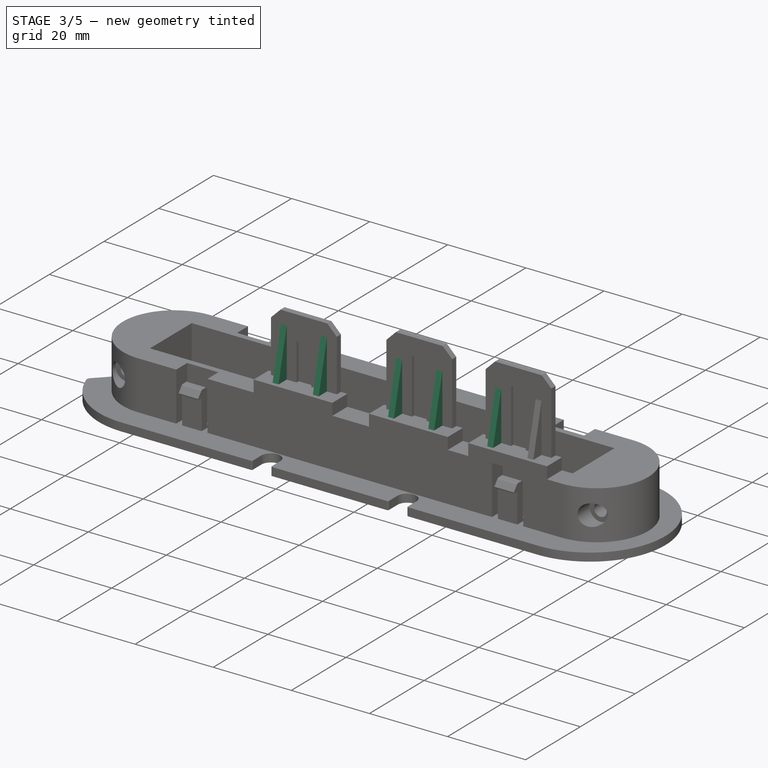
[diagram: stage 3 of 5 — iso view after this stage's code; geometry added in this stage tinted green]
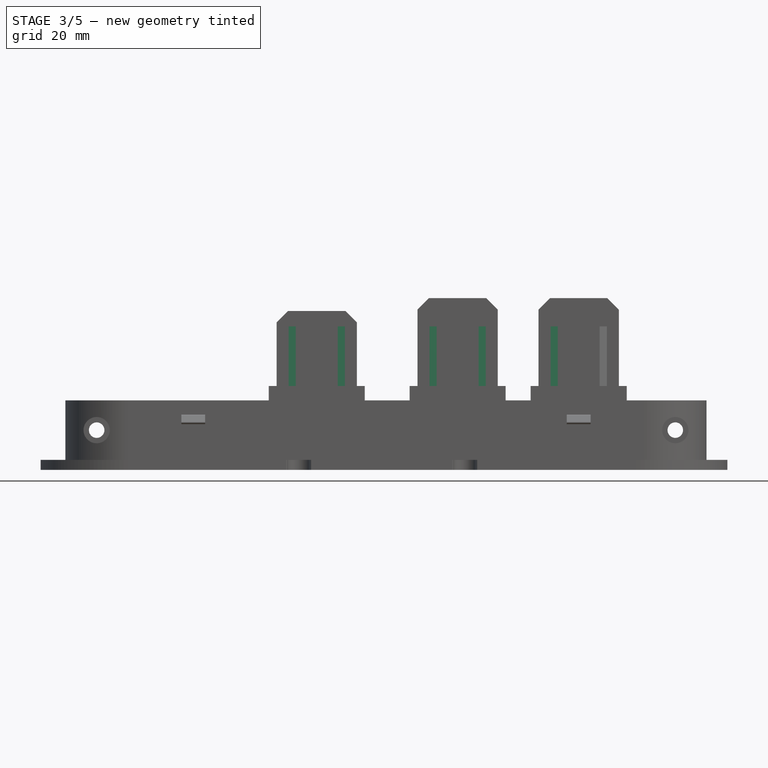
[diagram: stage 3 of 5 — front view after this stage's code; geometry added in this stage tinted green]
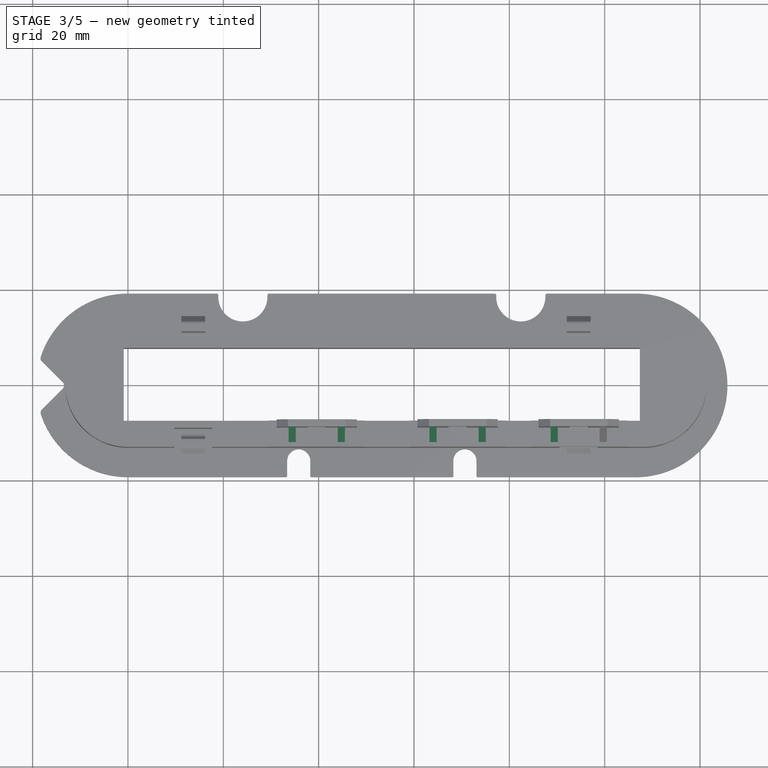
[diagram: stage 3 of 5 — top view after this stage's code; geometry added in this stage tinted green]
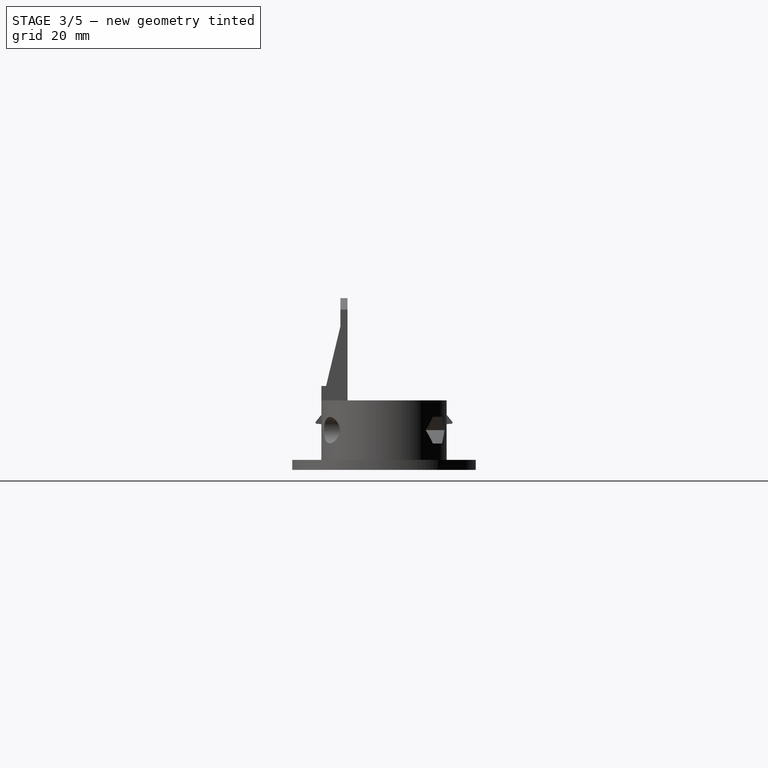
[diagram: stage 3 of 5 — right view after this stage's code; geometry added in this stage tinted green]
FEATURE [PartDesign::Mirrored] Mirrored001
  BaseFeature = -> Pad005
  MirrorPlane = -> DatumPlane009
  Originals = -> [Pad005]
  Refine = true
  Suppressed = false
  TransformMode = 0
FEATURE [Sketcher::SketchObject] Sketch014
  ArcFitTolerance = 1e-06
  AttachmentSupport = -> [DatumPlane008]
  ExternalGeometry = -> [Sketch013]
  FullyConstrained = true
  MakeInternals = false
  MapMode = 5
  Placement = pos=(74.3,-9.15,17.6) rot=(0,1,0;1.5708rad)
  sketch-geometry (3):
    g0: LineSegment StartX=0 StartY=0 StartZ=0 EndX=0 EndY=-3 EndZ=0
    g1: LineSegment StartX=0 StartY=-3 StartZ=0 EndX=-12.525 EndY=3.6e-15 EndZ=0
    g2: LineSegment StartX=-12.525 StartY=3.6e-15 StartZ=0 EndX=0 EndY=0 EndZ=0
  constraints (6):
    c: Coincident(g-1,g0)
    c: Coincident(g0,g1)
    c: Coincident(g1,g-4)
    c: Coincident(g1,g2)
    c: Coincident(g-5,g0)
    c: Coincident(g0,g2)
FEATURE [PartDesign::Pad] Pad006
  BaseFeature = -> Mirrored001
  Direction = (1,0,2e-16)
  Length = 1.5
  Length2 = 10
  Midplane = true
  Profile = -> Sketch014
  ReferenceAxis = -> Sketch014 [N_Axis]
  Refine = true
  Suppressed = false
  Type = 0
FEATURE [PartDesign::Mirrored] Mirrored002
  BaseFeature = -> Pad006
  MirrorPlane = -> DatumPlane007
  Originals = -> [Pad006]
  Refine = true
  Suppressed = false
  TransformMode = 0
FEATURE [Sketcher::SketchObject] Sketch015
  ArcFitTolerance = 1e-06
  AttachmentSupport = -> [DatumPlane006]
  ExternalGeometry = -> [Sketch013]
  FullyConstrained = true
  MakeInternals = false
  MapMode = 5
  Placement = pos=(44.75,-9.15,17.6) rot=(0,1,0;1.5708rad)
  sketch-geometry (3):
    g0: LineSegment StartX=-12.525 StartY=0 StartZ=0 EndX=0 EndY=0 EndZ=0
    g1: LineSegment StartX=0 StartY=0 StartZ=0 EndX=0 EndY=-3 EndZ=0
    g2: LineSegment StartX=0 StartY=-3 StartZ=0 EndX=-12.525 EndY=0 EndZ=0
  constraints (6):
    c: Coincident(g0,g-5)
    c: Coincident(g0,g-1)
    c: Coincident(g1,g0)
    c: Coincident(g1,g-4)
    c: Coincident(g2,g1)
    c: Coincident(g2,g0)
FEATURE [PartDesign::Pad] Pad007
  BaseFeature = -> Mirrored002
  Direction = (1,0,2e-16)
  Length = 1.5
  Length2 = 10
  Midplane = true
  Profile = -> Sketch015
  ReferenceAxis = -> Sketch015 [N_Axis]
  Refine = true
  Suppressed = false
  Type = 0
FEATURE [PartDesign::Mirrored] Mirrored003
  BaseFeature = -> Pad007
  MirrorPlane = -> DatumPlane005
  Originals = -> [Pad007]
  Refine = true
  Suppressed = false
  TransformMode = 0
FEATURE [PartDesign::Fillet] Fillet
  Base = -> Mirrored003 [Edge81,Edge80,Edge86,Edge112]
  BaseFeature = -> Mirrored003
  Radius = 1
  Refine = true
  SupportTransform = false
  Suppressed = false
  UseAllEdges = false
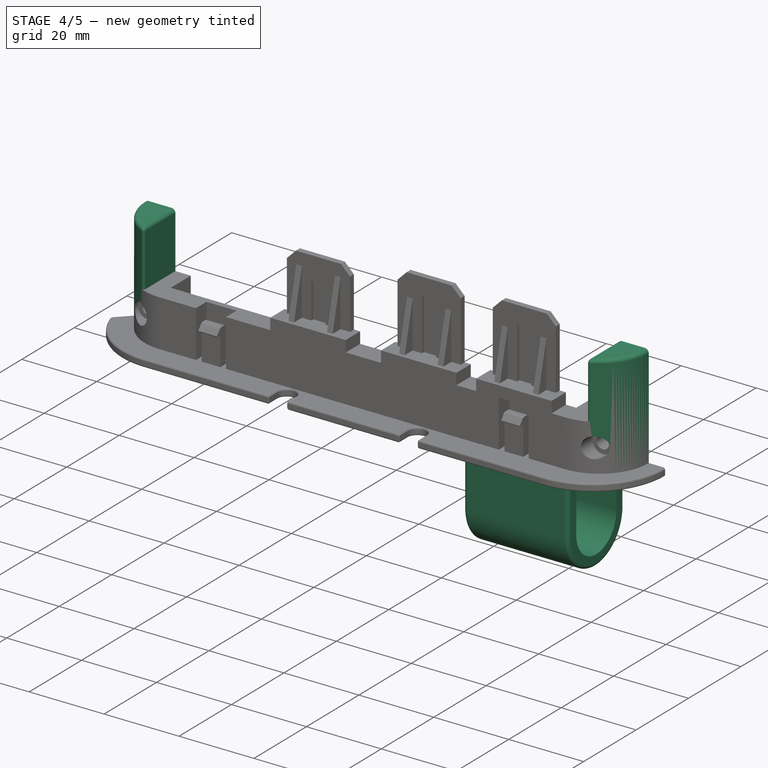
[diagram: stage 4 of 5 — iso view after this stage's code; geometry added in this stage tinted green]
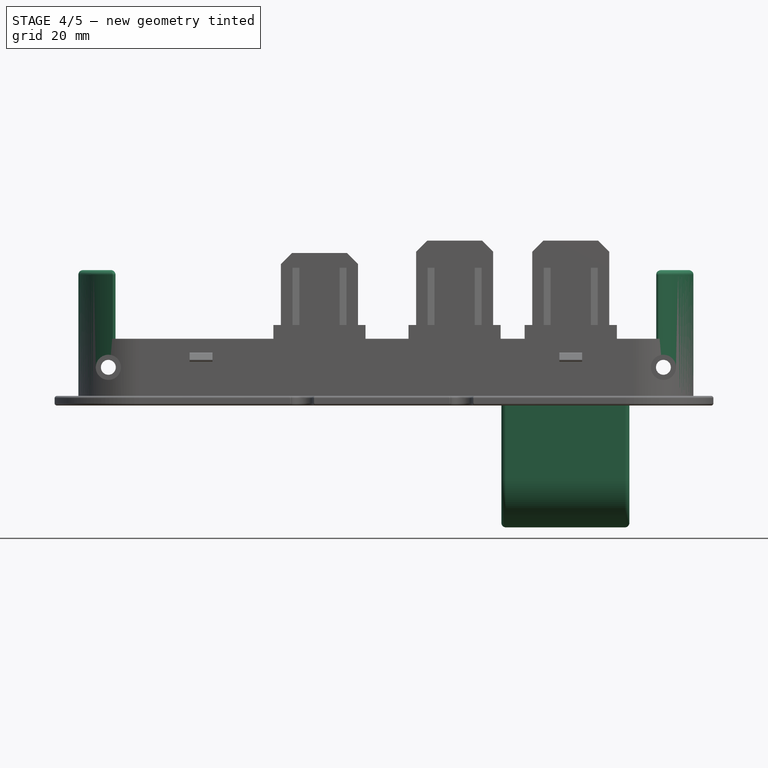
[diagram: stage 4 of 5 — front view after this stage's code; geometry added in this stage tinted green]
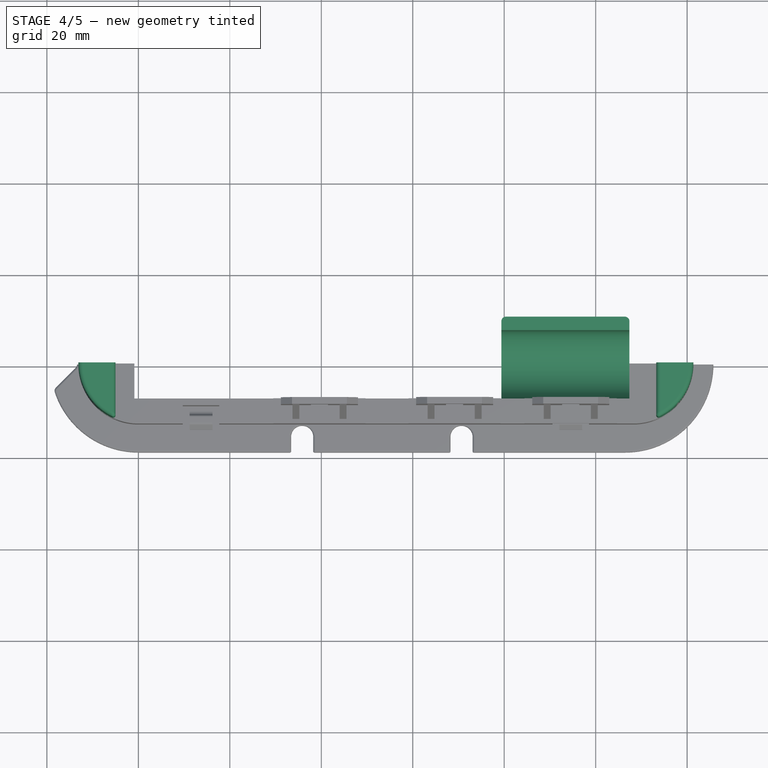
[diagram: stage 4 of 5 — top view after this stage's code; geometry added in this stage tinted green]
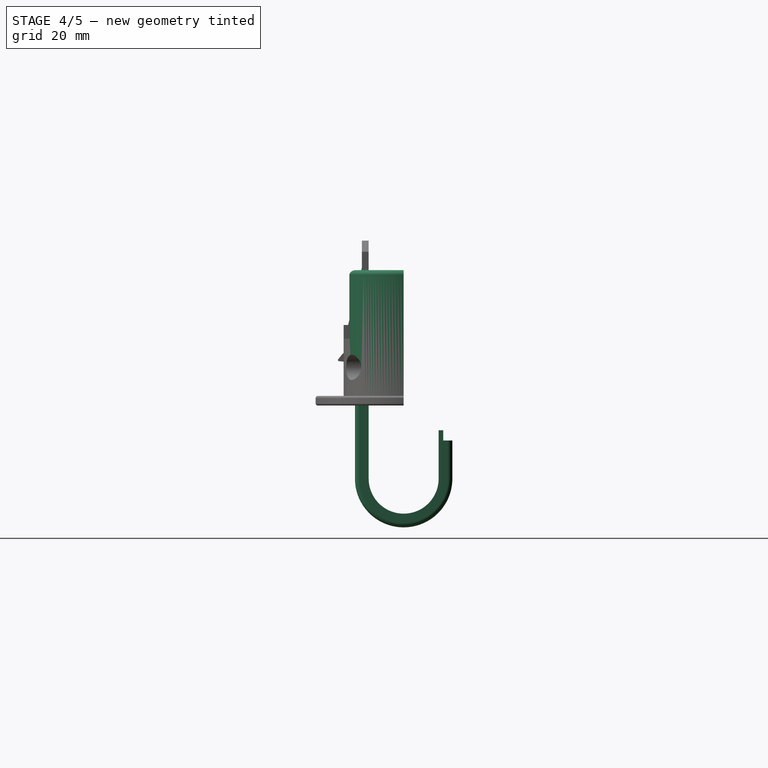
[diagram: stage 4 of 5 — right view after this stage's code; geometry added in this stage tinted green]
FEATURE [Sketcher::SketchObject] Sketch016
  ArcFitTolerance = 1e-06
  FullyConstrained = true
  MakeInternals = false
  MapMode = 5
  Placement = pos=(0,0,14.6) rot=(0,0,1;0rad)
  sketch-geometry (8):
    g0: ArcOfCircle CenterX=0 CenterY=0 CenterZ=0 NormalX=0 NormalY=0 NormalZ=1 AngleXU=0 Radius=13.125 StartAngle=2.02155 EndAngle=4.26164
    g1: LineSegment StartX=-5 StartY=11.364 StartZ=0 EndX=-5 EndY=-11.364 EndZ=0
    g2: ArcOfCircle CenterX=108.25 CenterY=5e-16 CenterZ=0 NormalX=0 NormalY=0 NormalZ=1 AngleXU=0 Radius=13.125 StartAngle=5.16314 EndAngle=7.40323
    g3: LineSegment StartX=113.25 StartY=11.364 StartZ=0 EndX=113.25 EndY=-11.364 EndZ=0
    g4: ArcOfCircle CenterX=-5.5 CenterY=11.364 CenterZ=0 NormalX=0 NormalY=0 NormalZ=1 AngleXU=0 Radius=0.5 StartAngle=-1.8e-15 EndAngle=2.02155
    g5: ArcOfCircle CenterX=-5.5 CenterY=-11.364 CenterZ=0 NormalX=0 NormalY=0 NormalZ=1 AngleXU=0 Radius=0.5 StartAngle=4.26164 EndAngle=6.28319
    g6: ArcOfCircle CenterX=113.75 CenterY=11.364 CenterZ=0 NormalX=0 NormalY=0 NormalZ=1 AngleXU=0 Radius=0.5 StartAngle=1.12004 EndAngle=3.14159
    g7: ArcOfCircle CenterX=113.75 CenterY=-11.364 CenterZ=0 NormalX=0 NormalY=0 NormalZ=1 AngleXU=0 Radius=0.5 StartAngle=3.14159 EndAngle=5.16314
  constraints (21):
    c: Coincident(g0,g-1)
    c: Vertical(g1)
    c: Coincident(g2,g-4)
    c: Vertical(g3)
    c: Equal(g3,g1)
    c: Distance(g-2,g1) = 5
    c: Tangent(g0,g4) = -1.5708
    c: Tangent(g1,g4) = 1.5708
    c: Tangent(g0,g5) = -1.5708
    c: Tangent(g1,g5) = 1.5708
    c: PointOnObject(g0,g-3)
    c: Equal(g5,g4)
    c: Radius(g4) = 0.5
    c: Tangent(g2,g6) = -1.5708
    c: Equal(g6,g4)
    c: Coincident(g3,g6)
    c: Tangent(g3,g7) = -1.5708
    c: Tangent(g2,g7) = -1.5708
    c: Equal(g6,g7)
    c: PointOnObject(g2,g-4)
    c: Horizontal(g6,g4)
FEATURE [PartDesign::Pad] Pad008
  BaseFeature = -> Fillet
  Direction = (0,0,1)
  Length = 15
  Length2 = 10
  Profile = -> Sketch016
  ReferenceAxis = -> Sketch016 [N_Axis]
  Refine = true
  Suppressed = false
  Type = 0
FEATURE [PartDesign::Fillet] Fillet002
  Base = -> Pad008 [Edge492,Edge416]
  BaseFeature = -> Pad008
  Radius = 1
  Refine = true
  SupportTransform = false
  Suppressed = false
  UseAllEdges = false
FEATURE [Sketcher::SketchObject] Sketch017
  ArcFitTolerance = 1e-06
  AttachmentSupport = -> [Fillet002]
  ExternalGeometry = -> [Fillet002]
  FullyConstrained = true
  MakeInternals = false
  MapMode = 5
  Placement = pos=(107.375,0,0) rot=(0.57735,-0.57735,-0.57735;2.0944rad)
  sketch-geometry (8):
    g0: LineSegment StartX=-7.65 StartY=0 StartZ=0 EndX=-7.65 EndY=-16 EndZ=0
    g1: LineSegment StartX=7.65 StartY=0 StartZ=0 EndX=7.65 EndY=-16 EndZ=0
    g2: ArcOfCircle CenterX=-4e-16 CenterY=-16 CenterZ=0 NormalX=0 NormalY=0 NormalZ=1 AngleXU=0 Radius=7.65 StartAngle=3.14159 EndAngle=6.28319
    g3: LineSegment StartX=-10.65 StartY=0 StartZ=0 EndX=-7.65 EndY=0 EndZ=0
    g4: LineSegment StartX=10.65 StartY=0 StartZ=0 EndX=7.65 EndY=0 EndZ=0
    g5: LineSegment StartX=-10.65 StartY=0 StartZ=0 EndX=-10.65 EndY=-16 EndZ=0
    g6: LineSegment StartX=10.65 StartY=0 StartZ=0 EndX=10.65 EndY=-16 EndZ=0
    g7: ArcOfCircle CenterX=-4e-16 CenterY=-16 CenterZ=0 NormalX=0 NormalY=0 NormalZ=1 AngleXU=0 Radius=10.65 StartAngle=3.14159 EndAngle=6.28319
  constraints (23):
    c: Coincident(g0,g-3)
    c: Vertical(g0)
    c: Coincident(g1,g-3)
    c: Vertical(g1)
    c: Equal(g0,g1)
    c: Coincident(g2,g0)
    c: Coincident(g2,g1)
    c: Horizontal(g2,g0)
    c: PointOnObject(g3,g-3)
    c: Coincident(g3,g0)
    c: PointOnObject(g4,g-3)
    c: Coincident(g4,g1)
    c: Equal(g3,g4)
    c: Vertical(g5)
    c: Coincident(g6,g4)
    c: Equal(g6,g0)
    c: Coincident(g5,g3)
    c: Coincident(g7,g5)
    c: Coincident(g7,g6)
    c: Distance(g3,g3) = 3
    c: Coincident(g2,g7)
    c: Horizontal(g0,g5)
    c: Distance(g5,g5) = 16
FEATURE [PartDesign::Pad] Pad009
  BaseFeature = -> Fillet002
  Direction = (-1,0,0)
  Length = 28
  Length2 = 10
  Profile = -> Sketch017
  ReferenceAxis = -> Sketch017 [N_Axis]
  Refine = true
  Suppressed = false
  Type = 0
FEATURE [PartDesign::Fillet] Fillet003
  Base = -> Pad009 [Edge78,Edge249]
  BaseFeature = -> Pad009
  Radius = 0.5
  Refine = true
  SupportTransform = false
  Suppressed = false
  UseAllEdges = false
FEATURE [PartDesign::Fillet] Fillet004
  Base = -> Fillet003 [Edge572,Edge566]
  BaseFeature = -> Fillet003
  Radius = 1
  Refine = true
  SupportTransform = false
  Suppressed = false
  UseAllEdges = false
FEATURE [Sketcher::SketchObject] Sketch019
  ArcFitTolerance = 1e-06
  AttachmentSupport = -> [YZ_Plane]
  ExternalGeometry = -> [Fillet004]
  FullyConstrained = true
  MakeInternals = false
  MapMode = 5
  Placement = pos=(0,0,0) rot=(0.57735,0.57735,0.57735;2.0944rad)
  sketch-geometry (4):
    g0: LineSegment StartX=0 StartY=29.6 StartZ=0 EndX=0 EndY=-5.4 EndZ=0
    g1: LineSegment StartX=0 StartY=-5.4 StartZ=0 EndX=8.65 EndY=-5.4 EndZ=0
    g2: LineSegment StartX=8.65 StartY=-5.4 StartZ=0 EndX=8.65 EndY=-7.65 EndZ=0
    g3: LineSegment StartX=8.65 StartY=-7.65 StartZ=0 EndX=10.65 EndY=-7.65 EndZ=0
  constraints (12):
    c: Symmetric(g-4,g-4,g0)
    c: PointOnObject(g0,g-2)
    c: Coincident(g1,g0)
    c: Horizontal(g1)
    c: Coincident(g2,g1)
    c: Vertical(g2)
    c: Coincident(g3,g2)
    c: PointOnObject(g3,g-5)
    c: Horizontal(g3)
    c: Distance(g0,g0) = 35
    c: Distance(g2,g2) = 2.25
    c: Distance(g3,g3) = 2
FEATURE [PartDesign::Body] Body
  AllowCompound = false
  Group = -> [Sketch,Pad,Sketch001,Pocket,Sketch002,Pad001,Sketch004,Pad002,DatumPlane,Sketch005,Pad003,DatumPlane001,Sketch006,Pocket002,Sketch007,Sketch008,Pocket003,Pocket004,DatumPoint,DatumPlane002,DatumPoint001,DatumPlane003,Sketch009,Pad004,DatumPoint002,DatumPlane004,Mirrored,Sketch010,Pocket005,Sketch011,Pocket006,Sketch012,Pocket007,DatumPoint004,DatumPoint006,DatumPoint008,DatumPoint009,+26 more]
  Origin = -> Origin
  Tip = -> Fillet004
FEATURE [Part::Extrusion] Extrude001  label="Cut"
  Base = -> Sketch019
  Dir = (1,0,0)
  DirMode = 2
  FaceMakerClass = Part::FaceMakerBullseye
  FaceMakerMode = 3
  LengthFwd = 150
  LengthRev = 25
  Solid = false
  Symmetric = false
FEATURE [Part::FeaturePython] Slice  # WARN: FeaturePython — macro-defined, semantics opaque (R4)
  Base = -> Fillet004
  Mode = 1
  Tolerance = 0
  Tools = -> [Extrude001]
FEATURE [Part::FeaturePython] Slice_child1  label="Slice.1"  # WARN: FeaturePython — macro-defined, semantics opaque (R4)
  Base = -> Slice
  FilterType = 1
  Invert = false
  OverrideMaxVal = 0
  WindowFrom = 80
  WindowTo = 100
  items = 1
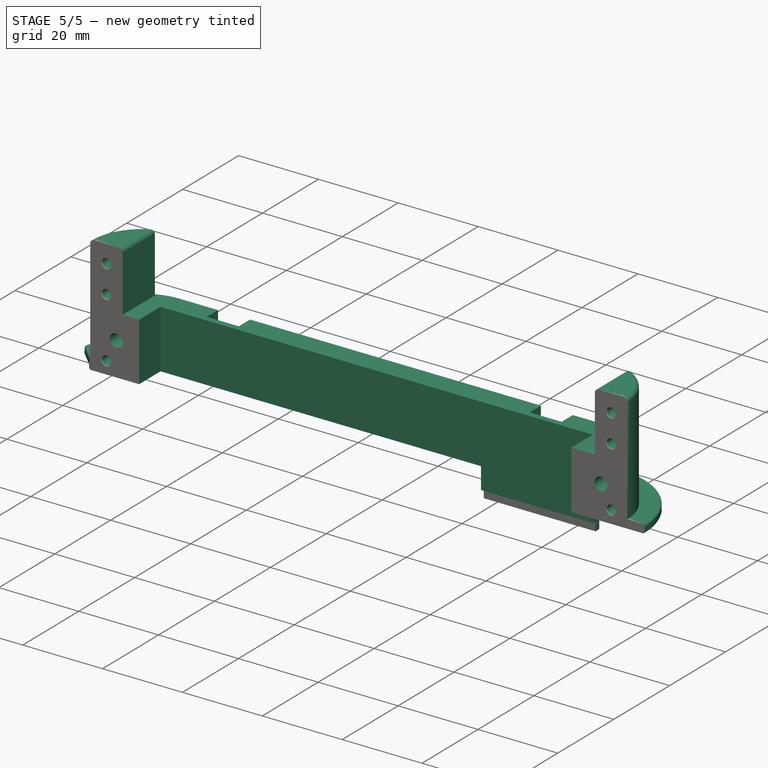
[diagram: stage 5 of 5 — iso view after this stage's code; geometry added in this stage tinted green]
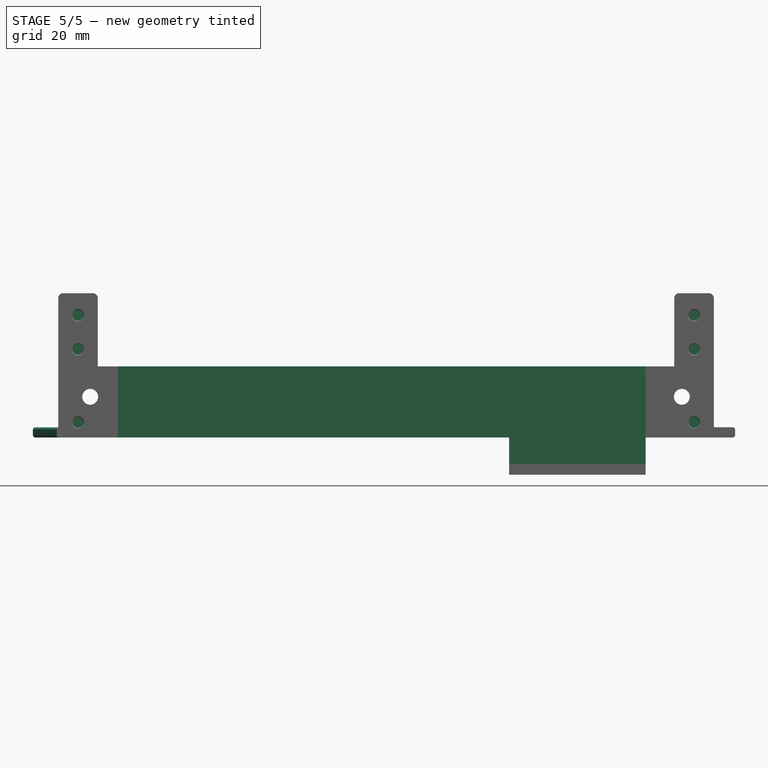
[diagram: stage 5 of 5 — front view after this stage's code; geometry added in this stage tinted green]
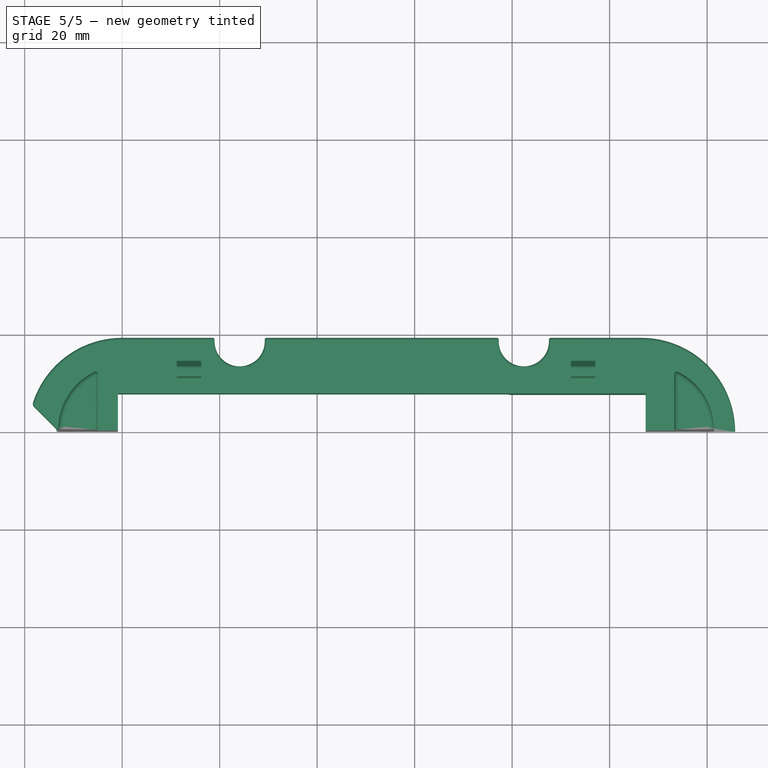
[diagram: stage 5 of 5 — top view after this stage's code; geometry added in this stage tinted green]
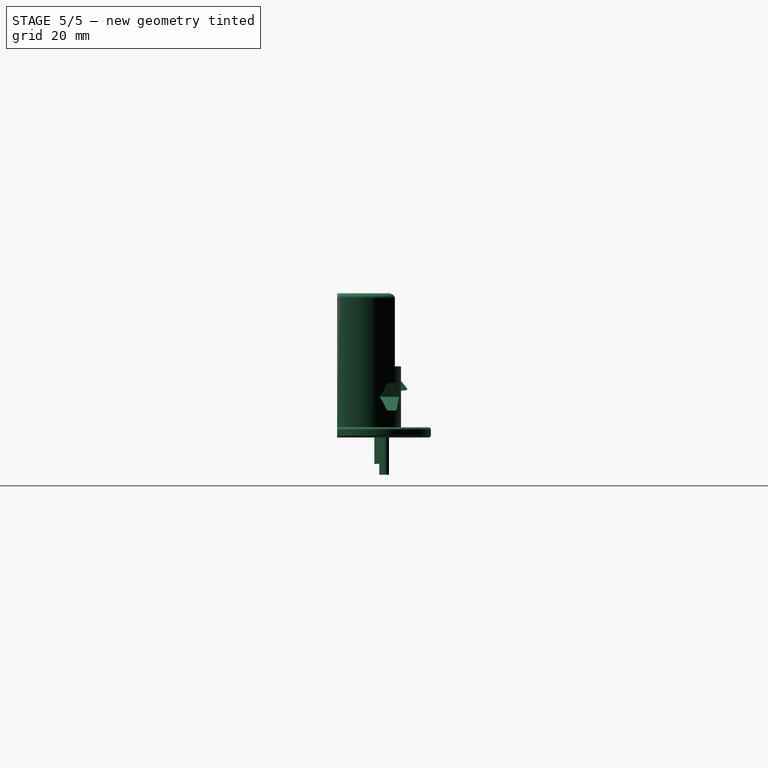
[diagram: stage 5 of 5 — right view after this stage's code; geometry added in this stage tinted green]
FEATURE [Part::FeaturePython] Slice_child0  label="Slice.0"  # WARN: FeaturePython — macro-defined, semantics opaque (R4)
  Base = -> Slice
  FilterType = 1
  Invert = false
  OverrideMaxVal = 0
  WindowFrom = 80
  WindowTo = 100
  items = 0
FEATURE [App::DocumentObjectGroup] GrExplode_Slice  label="Exploded Slice"
  Group = -> [Slice_child0,Slice_child1]
FEATURE [PartDesign::FeatureBase] BaseFeature
  BaseFeature = -> Slice_child1
  Suppressed = false
FEATURE [Sketcher::SketchObject] Sketch020
  ArcFitTolerance = 1e-06
  AttachmentSupport = -> [XZ_Plane001]
  ExternalGeometry = -> [BaseFeature]
  FullyConstrained = true
  MakeInternals = false
  MapMode = 5
  Placement = pos=(0,0,0) rot=(1,0,0;1.5708rad)
  sketch-geometry (14):
    g0: Circle CenterX=-9.0625 CenterY=25.1 CenterZ=0 NormalX=0 NormalY=0 NormalZ=1 AngleXU=0 Radius=1
    g1: Circle CenterX=-9.0625 CenterY=18.1 CenterZ=0 NormalX=0 NormalY=0 NormalZ=1 AngleXU=0 Radius=1
    g2: Circle CenterX=-9.0625 CenterY=3.1 CenterZ=0 NormalX=0 NormalY=0 NormalZ=1 AngleXU=0 Radius=1
    g3: LineSegment [constr] StartX=-5 StartY=21.6 StartZ=0 EndX=-13.125 EndY=21.6 EndZ=0
    g4: GeomPoint [constr] X=-9.0625 Y=21.6 Z=0
    g5: LineSegment [constr] StartX=-5 StartY=21.6 StartZ=0 EndX=-13.125 EndY=28.6 EndZ=0
    g6: LineSegment [constr] StartX=-5 StartY=14.6 StartZ=0 EndX=-13.125 EndY=21.6 EndZ=0
    g7: LineSegment [constr] StartX=113.25 StartY=21.6 StartZ=0 EndX=121.375 EndY=21.6 EndZ=0
    g8: LineSegment [constr] StartX=113.25 StartY=14.6 StartZ=0 EndX=121.375 EndY=21.6 EndZ=0
    g9: LineSegment [constr] StartX=113.25 StartY=21.6 StartZ=0 EndX=121.375 EndY=28.6 EndZ=0
    g10: GeomPoint [constr] X=117.312 Y=21.6 Z=0
    g11: Circle CenterX=117.312 CenterY=25.1 CenterZ=0 NormalX=0 NormalY=0 NormalZ=1 AngleXU=0 Radius=1
    g12: Circle CenterX=117.312 CenterY=18.1 CenterZ=0 NormalX=0 NormalY=0 NormalZ=1 AngleXU=0 Radius=1
    g13: Circle CenterX=117.312 CenterY=3.1 CenterZ=0 NormalX=0 NormalY=0 NormalZ=1 AngleXU=0 Radius=1
  constraints (33):
    c: Equal(g2,g1)
    c: Equal(g1,g0)
    c: Vertical(g0,g1)
    c: Vertical(g1,g2)
    c: Diameter(g0) = 2
    c: Symmetric(g-4,g-4,g3)
    c: PointOnObject(g3,g-3)
    c: Horizontal(g3)
    c: Symmetric(g3,g3,g4)
    c: Coincident(g5,g3)
    c: Coincident(g5,g-3)
    c: Coincident(g6,g-4)
    c: Coincident(g6,g3)
    c: PointOnObject(g0,g5)
    c: PointOnObject(g1,g6)
    c: DistanceY(g2,g1) = 15
    c: Vertical(g4,g0)
    c: Symmetric(g-6,g-6,g7)
    c: PointOnObject(g7,g-5)
    c: Horizontal(g7)
    c: Coincident(g8,g-6)
    c: Coincident(g8,g7)
    c: Coincident(g9,g7)
    c: Coincident(g9,g-5)
    c: Symmetric(g7,g7,g10)
    c: Symmetric(g9,g9,g11)
    c: PointOnObject(g12,g8)
    c: Vertical(g11,g12)
    c: Vertical(g12,g13)
    c: Equal(g11,g12)
    c: Equal(g12,g13)
    c: Equal(g13,g0)
    c: Horizontal(g13,g2)
FEATURE [PartDesign::Pad] Pad010  label="male connectors"
  BaseFeature = -> BaseFeature
  Direction = (0,-1,2e-16)
  Length = 2
  Length2 = 10
  Profile = -> Sketch020
  ReferenceAxis = -> Sketch020 [N_Axis]
  Refine = true
  Reversed = true
  Suppressed = false
  Type = 0
FEATURE [PartDesign::FeatureBase] BaseFeature001
  BaseFeature = -> Slice_child0
  Suppressed = false
FEATURE [PartDesign::SubShapeBinder] Binder
  BindCopyOnChange = 0
  BindMode = 0
  ClaimChildren = false
  Context = -> Body002 [Binder.]
  Fuse = false
  MakeFace = true
  OffsetFill = false
  OffsetIntersection = false
  OffsetJoinType = 0
  OffsetOpenResult = false
  PartialLoad = false
  Refine = true
  Relative = true
  Support = -> [Body001[Pad010.Edge295,Pad010.Edge293,Pad010.Edge297,Pad010.Edge362,Pad010.Edge360,Pad010.Edge358]]
  _Version = 2
FEATURE [Sketcher::SketchObject] Sketch021
  ArcFitTolerance = 1e-06
  AttachmentSupport = -> [XZ_Plane002]
  ExternalGeometry = -> [Binder]
  FullyConstrained = true
  MakeInternals = false
  MapMode = 5
  Placement = pos=(0,0,0) rot=(1,0,0;1.5708rad)
  sketch-geometry (6):
    g0: Circle CenterX=-9.0625 CenterY=25.1 CenterZ=0 NormalX=0 NormalY=0 NormalZ=1 AngleXU=0 Radius=1.125
    g1: Circle CenterX=-9.0625 CenterY=18.1 CenterZ=0 NormalX=0 NormalY=0 NormalZ=1 AngleXU=0 Radius=1.125
    g2: Circle CenterX=-9.0625 CenterY=3.1 CenterZ=0 NormalX=0 NormalY=0 NormalZ=1 AngleXU=0 Radius=1.125
    g3: Circle CenterX=117.312 CenterY=25.1 CenterZ=0 NormalX=0 NormalY=0 NormalZ=1 AngleXU=0 Radius=1.125
    g4: Circle CenterX=117.312 CenterY=18.1 CenterZ=0 NormalX=0 NormalY=0 NormalZ=1 AngleXU=0 Radius=1.125
    g5: Circle CenterX=117.312 CenterY=3.1 CenterZ=0 NormalX=0 NormalY=0 NormalZ=1 AngleXU=0 Radius=1.125
  constraints (12):
    c: Coincident(g0,g-8)
    c: Coincident(g1,g-7)
    c: Coincident(g2,g-6)
    c: Coincident(g3,g-3)
    c: Coincident(g4,g-4)
    c: Coincident(g5,g-5)
    c: Equal(g3,g4)
    c: Equal(g4,g5)
    c: Equal(g5,g0)
    c: Equal(g0,g1)
    c: Equal(g1,g2)
    c: Diameter(g0) = 2.25
FEATURE [PartDesign::Pocket] Pocket008
  BaseFeature = -> BaseFeature001
  Direction = (0,1,-2e-16)
  Length = 3.5
  Length2 = 5
  Profile = -> Sketch021
  ReferenceAxis = -> Sketch021 [N_Axis]
  Refine = true
  Suppressed = false
  Type = 0
FEATURE [PartDesign::Fillet] Fillet005
  Base = -> Pad010 [Edge358,Edge360,Edge362,Edge297,Edge295,Edge293]
  BaseFeature = -> Pad010
  Radius = 1
  Refine = true
  SupportTransform = false
  Suppressed = false
  UseAllEdges = false
FEATURE [PartDesign::Body] Body001  label="LeftHalf"
  AllowCompound = false
  BaseFeature = -> Slice_child1
  Group = -> [BaseFeature,Sketch020,Pad010,Fillet005]
  Origin = -> Origin001
  Tip = -> Fillet005
FEATURE [PartDesign::Fillet] Fillet006
  Base = -> Pocket008 [Edge121,Edge120,Edge119,Edge76,Edge77,Edge78]
  BaseFeature = -> Pocket008
  Radius = 0.2
  Refine = true
  SupportTransform = false
  Suppressed = false
  UseAllEdges = false
FEATURE [PartDesign::Body] Body002  label="RightHalf"
  AllowCompound = false
  BaseFeature = -> Slice_child0
  Group = -> [BaseFeature001,Binder,Sketch021,Pocket008,Fillet006]
  Origin = -> Origin002
  Tip = -> Fillet006
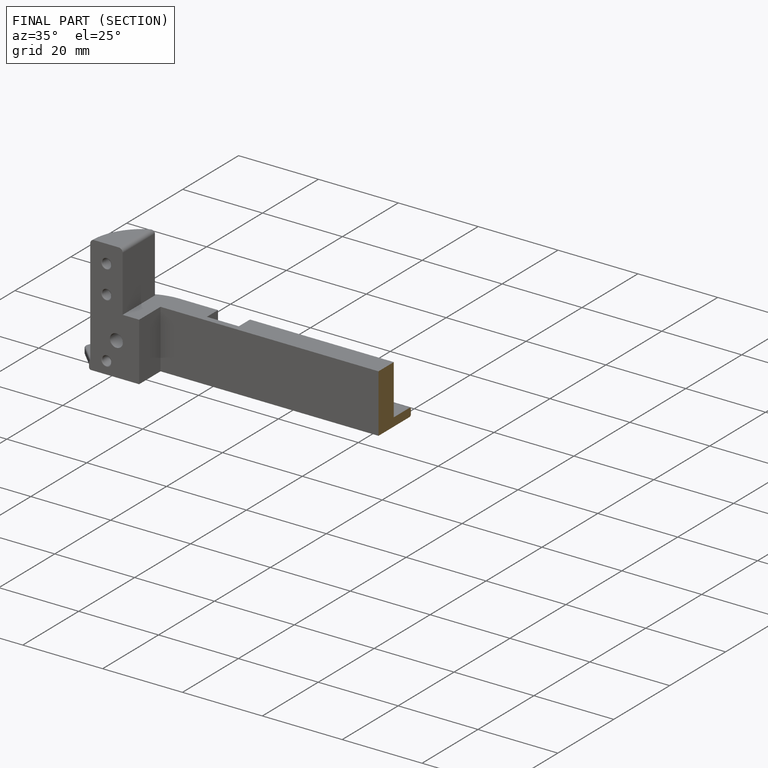
[diagram: finished part — half-section view (interior)]
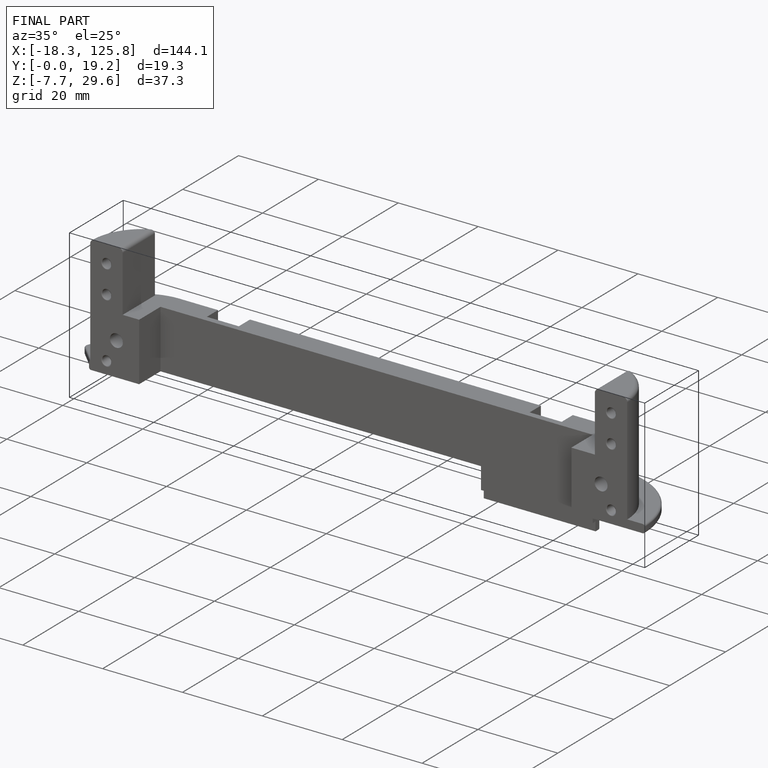
[diagram: finished part — iso view with bounding-box wireframe]
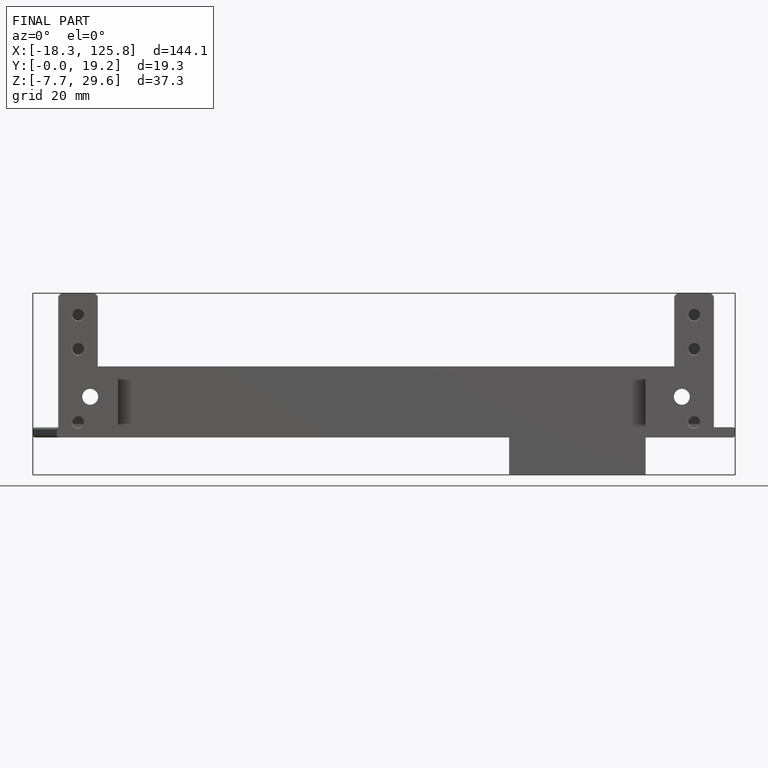
[diagram: finished part — front view with bounding-box wireframe]
